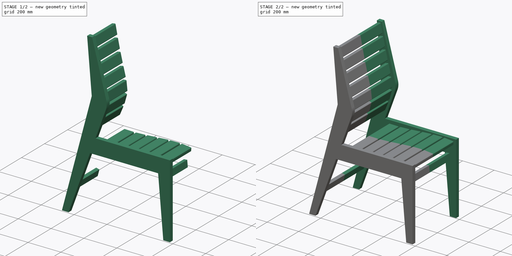
[diagram: build sequence overview — one tinted view per stage of 2, left to right]
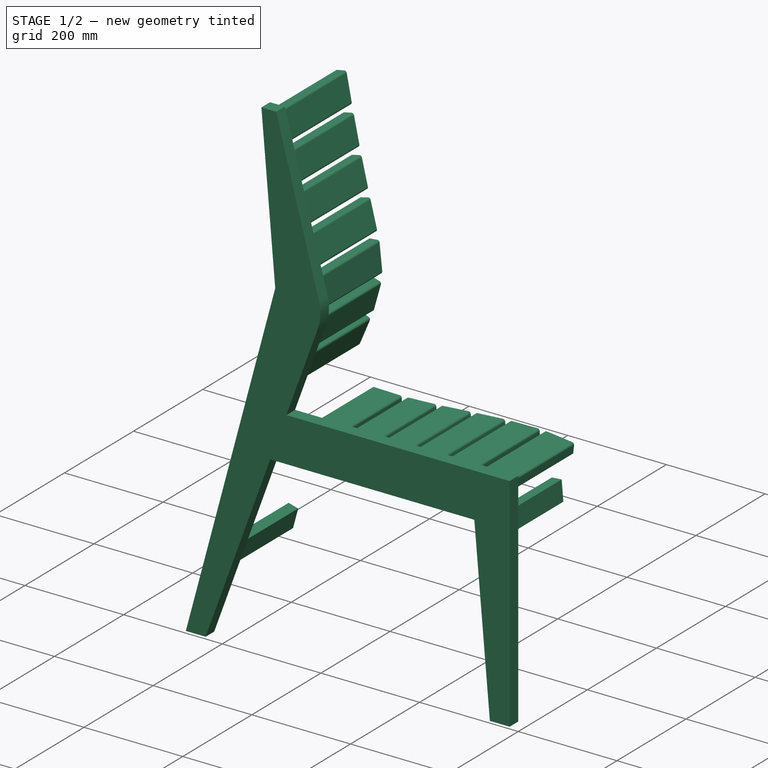
[diagram: stage 1 of 2 — iso view after this stage's code; geometry added in this stage tinted green]
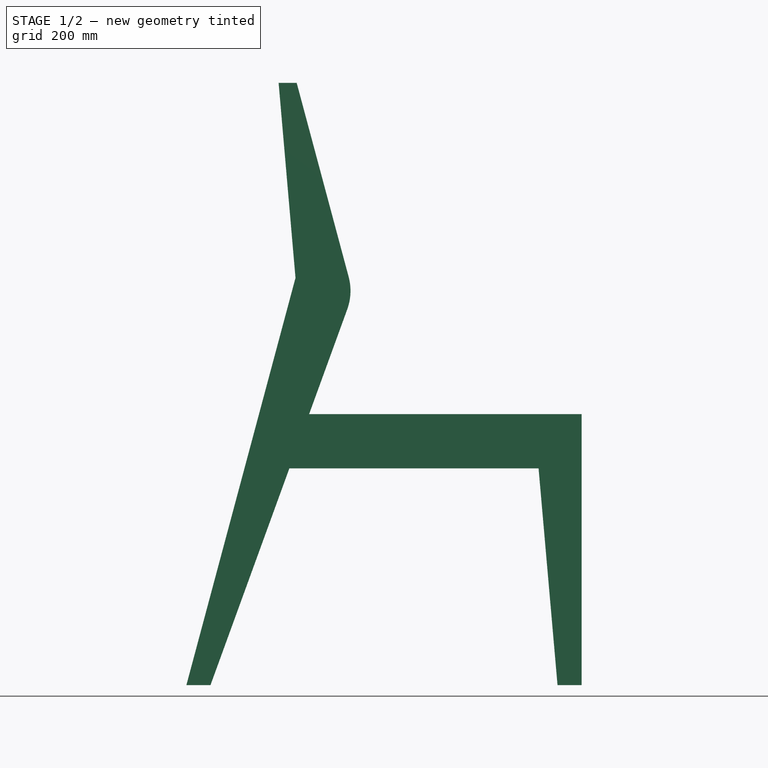
[diagram: stage 1 of 2 — front view after this stage's code; geometry added in this stage tinted green]
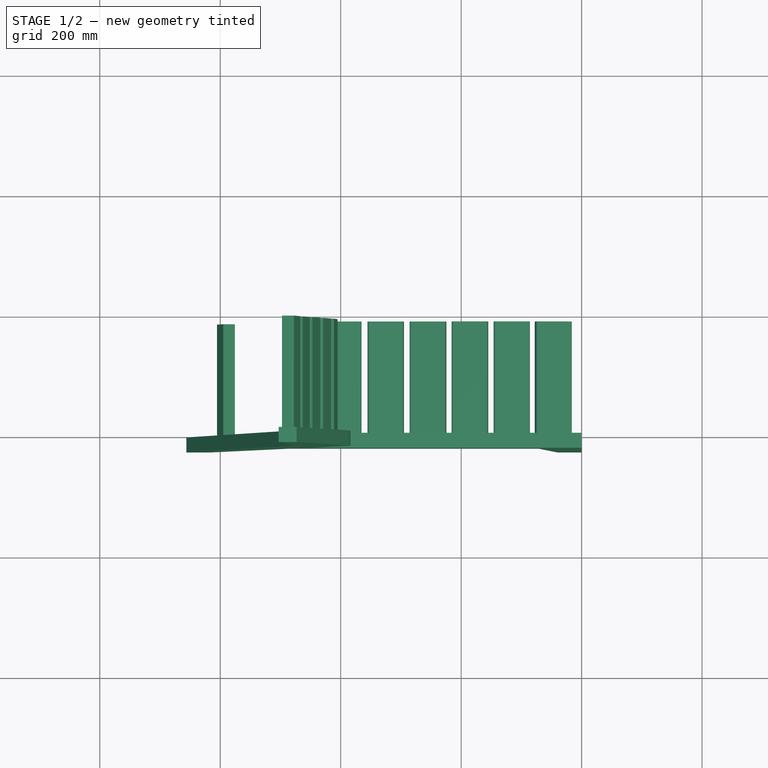
[diagram: stage 1 of 2 — top view after this stage's code; geometry added in this stage tinted green]
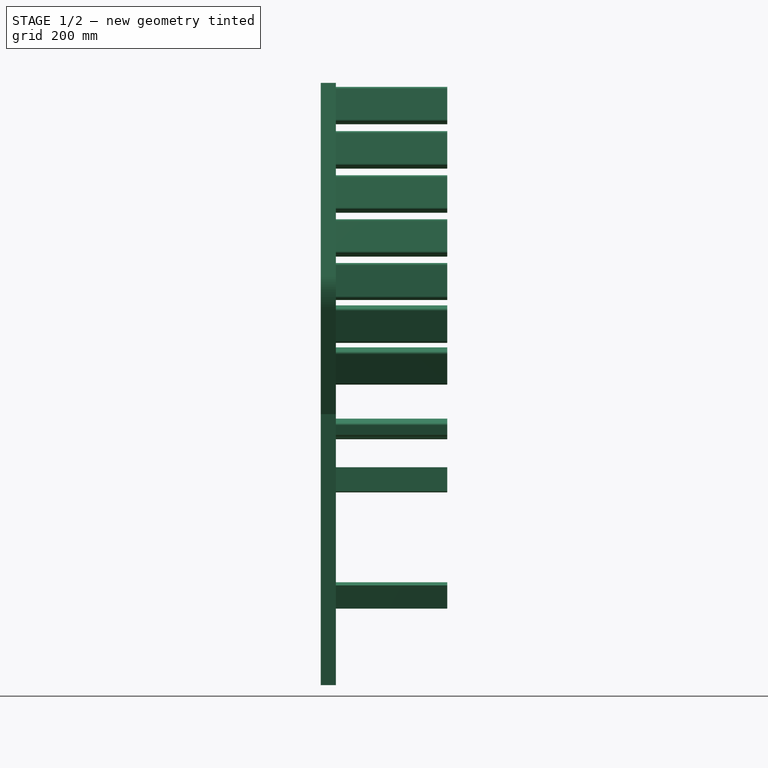
[diagram: stage 1 of 2 — right view after this stage's code; geometry added in this stage tinted green]
FCSTD DOCUMENT  (FreeCAD 0.21R33694 (Git))
Label: office_chair
License: All rights reserved
LicenseURL: http://en.wikipedia.org/wiki/All_rights_reserved
objects: TechDraw::DrawViewDimension×25, Sketcher::SketchObject×5, Spreadsheet::Sheet×3, TechDraw::DrawProjGroupItem×3, TechDraw::DrawProjGroup×3, TechDraw::DrawViewBalloon×3, PartDesign::Pad×2, TechDraw::DrawSVGTemplate×2, TechDraw::DrawViewAnnotation×2, TechDraw::DrawPage×2, PartDesign::Mirrored×1, PartDesign::Body×1
note: 51 computed .brp shape members not serialized (recipe doc carries the construction recipe); baked Part::Feature solids carry a one-line shape summary decoded from their .brp

FEATURE [Sketcher::SketchObject] Sketch
  FullyConstrained = true
  Placement = pos=(0,0,0) rot=(1,0,0;1.5708rad)
  expr: Constraints[16] = <<Spreadsheet>>.back_angle
  expr: Constraints[17] = <<Spreadsheet>>.back_leg_angle
  expr: Constraints[26] = <<Spreadsheet>>.total_height - <<Spreadsheet>>.seat_height
  expr: Constraints[5] = <<Spreadsheet>>.seat_height
  expr: Constraints[7] = <<Spreadsheet>>.seat_length
  sketch-geometry (18):
    g0: LineSegment StartX=-52.45 StartY=0 StartZ=0 EndX=400 EndY=0 EndZ=0
    g1: LineSegment StartX=328.504 StartY=-90 StartZ=0 EndX=-85.2073 EndY=-90 EndZ=0
    g2: LineSegment StartX=400 StartY=0 StartZ=0 EndX=400 EndY=-450 EndZ=0
    g3: LineSegment StartX=400 StartY=-450 StartZ=0 EndX=360 EndY=-450 EndZ=0
    g4: LineSegment StartX=360 StartY=-450 StartZ=0 EndX=328.504 EndY=-90 EndZ=0
    g5: LineSegment StartX=-216.237 StartY=-450 StartZ=0 EndX=-85.2073 EndY=-90 EndZ=0
    g6: LineSegment StartX=-52.45 StartY=0 StartZ=0 EndX=10.8322 EndY=173.866 EndZ=0
    g7: LineSegment StartX=13.1932 StartY=227.942 StartZ=0 EndX=-73.1021 EndY=550 EndZ=0
    g8: LineSegment StartX=-256.237 StartY=-450 StartZ=0 EndX=-216.237 EndY=-450 EndZ=0
    g9: LineSegment StartX=-73.1021 StartY=550 StartZ=0 EndX=-103.102 EndY=550 EndZ=0
    g10: LineSegment StartX=-103.102 StartY=550 StartZ=0 EndX=-75.0633 EndY=226.148 EndZ=0
    g11: LineSegment StartX=-256.237 StartY=-450 StartZ=0 EndX=-75.0633 EndY=226.148 EndZ=0
    g12: ArcOfCircle CenterX=-73.7402 CenterY=204.648 CenterZ=0 NormalX=0 NormalY=0 NormalZ=1 AngleXU=0 Radius=90 StartAngle=5.93412 EndAngle=6.54498
    g13: LineSegment StartX=-216.237 StartY=-450 StartZ=0 EndX=20.5376 EndY=200.532 EndZ=0
    g14: LineSegment StartX=-73.1021 StartY=550 StartZ=0 EndX=20.5376 EndY=200.532 EndZ=0
    g15: LineSegment StartX=-75.0633 StartY=226.148 StartZ=0 EndX=20.5376 EndY=200.532 EndZ=0
    g16: LineSegment StartX=-52.45 StartY=0 StartZ=0 EndX=-85.2073 EndY=-90 EndZ=0
    g17: LineSegment StartX=360 StartY=-450 StartZ=0 EndX=320.63 EndY=0 EndZ=0
  constraints (50):
    c: Horizontal(g0)
    c: Horizontal(g1)
    c: Coincident(g2,g3)
    c: Horizontal(g3)
    c: Coincident(g4,g3)
    c: DistanceY(g2,g0) = 450
    c: PointOnObject(g5,g3)
    c: DistanceX(g-1,g0) = 400
    c: Coincident(g2,g0)
    c: Coincident(g5,g1)
    c: Coincident(g1,g4)
    c: Perpendicular(g2,g0)
    c: DistanceX(g3,g2) = 40
    c: Angle(g1,g4) = 1.65806
    c: Coincident(g8,g5)
    c: Horizontal(g8)
    c: Angle(g0,g7) = 1.8326
    c: Angle(g5,g1) = 1.91986
    c: PointOnObject(g0,g-1)
    c: Coincident(g0,g6)
    c: PointOnObject(g0,g5)
    c: Coincident(g9,g7)
    c: Horizontal(g9)
    c: DistanceY(g1,g0) = 90
    c: Coincident(g10,g9)
    c: Coincident(g11,g8)
    c: DistanceY(g0,g7) = 550
    c: DistanceX(g8,g8) = 40
    c: DistanceX(g0,g0) = 452.45
    c: Tangent(g7,g12) = -1.5708
    c: Tangent(g6,g12) = -1.5708
    c: Coincident(g10,g11)
    c: Parallel(g6,g5)
    c: Angle(g8,g11) = 1.309
    c: Distance(g11) = 700
    c: Coincident(g13,g5)
    c: Coincident(g14,g7)
    c: Coincident(g14,g13)
    c: Parallel(g14,g7)
    c: Parallel(g13,g6)
    c: Coincident(g15,g10)
    c: Coincident(g15,g13)
    c: Coincident(g16,g0)
    c: Coincident(g16,g1)
    c: Coincident(g17,g3)
    c: PointOnObject(g17,g0)
    c: Parallel(g4,g17)
    c: Angle(g11,g15) = 1.5708
    c: Distance(g12,g7) = 90
    c: Distance(g9) = 30
FEATURE [Spreadsheet::Sheet] Spreadsheet
  cells = A1='seat length; B1(seat_length)=400; A2='seat height; B2(seat_height)=450; A3='back angle; B3(back_angle)=105; A4='chair width; B4(chair_width)=420; A5='slats thickness; B5(slat_thickness)=20; A6='back slats height; B6(back_slat_width)=60; A7='seat slats width; B7(seat_slat_width)=80; A8='seat slats thickness; B8(seat_slat_thickness)=20; A9='total height; B9(total_height)=1000; A10='lumbar support end height; B10(lumbar_end_height)=250; A11='back slat gap; B11(back_slat_gap)=15; A12='back slat thickness; B12(back_slat_thickness)=20; A13='seat slat gap; B13(seat_slat_gap)=10; A14='back leg angle to surface; B14(back_leg_angle)=110; A15='draft back; B15(draft_back)=5; A16='side thickness; B16(side_thickness)=25
FEATURE [Sketcher::SketchObject] Sketch001
  ExternalGeometry = -> [Sketch]
  FullyConstrained = false
  MapMode = 5
  Placement = pos=(0,0,0) rot=(0,0.707107,0.707107;3.14159rad)
  expr: Constraints[103] = Spreadsheet.seat_slat_gap
  expr: Constraints[129] = <<Spreadsheet>>.seat_slat_gap
  expr: Constraints[154] = <<Spreadsheet>>.seat_slat_gap
  expr: Constraints[179] = <<Spreadsheet>>.seat_slat_gap
  expr: Constraints[204] = <<Spreadsheet>>.seat_slat_gap
  expr: Constraints[262] = <<Spreadsheet>>.back_slat_gap
  expr: Constraints[331] = <<Spreadsheet>>.back_slat_gap
  expr: Constraints[378] = <<Spreadsheet>>.back_slat_gap
  expr: Constraints[385] = <<Spreadsheet>>.back_slat_gap
  expr: Constraints[386] = <<Spreadsheet>>.back_slat_gap
  expr: Constraints[387] = <<Spreadsheet>>.back_slat_gap
  expr: Constraints[395] = <<Spreadsheet>>.back_slat_thickness
  expr: Constraints[396] = 40
  expr: Constraints[40] = <<Spreadsheet>>.back_slat_width
  expr: Constraints[48] = <<Spreadsheet>>.back_slat_thickness
  sketch-geometry (150):
    g0-g3: Circle x4 (B-spline internal-alignment scaffolding for g4; pole/knot coordinates omitted)
    g4: BSplineCurve PolesCount=4 KnotsCount=2 Degree=3 IsPeriodic=0
    g5: GeomPoint X=-385 Y=-15 Z=0
    g6: GeomPoint X=32.45 Y=-20 Z=0
    g7: LineSegment StartX=-189.221 StartY=246.933 StartZ=0 EndX=-137.221 EndY=246.889 EndZ=0
    g8: LineSegment StartX=-133.225 StartY=242.885 StartZ=0 EndX=-133.238 EndY=226.885 EndZ=0
    g9: LineSegment StartX=-133.238 StartY=226.885 StartZ=0 EndX=-193.238 EndY=226.937 EndZ=0
    g10: LineSegment StartX=-193.238 StartY=226.937 StartZ=0 EndX=-193.225 EndY=242.937 EndZ=0
    g11-g15: Circle x5 (B-spline internal-alignment scaffolding for g16; pole/knot coordinates omitted)
    g16: BSplineCurve PolesCount=5 KnotsCount=3 Degree=3 IsPeriodic=0
    g17: GeomPoint X=72.45 Y=0 Z=0
    g18: GeomPoint X=5.10565 Y=196.674 Z=0
    g19: GeomPoint X=78.1021 Y=545 Z=0
    g20: Circle CenterX=-178.23 CenterY=236.924 CenterZ=0 NormalX=0 NormalY=0 NormalZ=1 AngleXU=0 Radius=4
    g21: Circle CenterX=-148.23 CenterY=236.898 CenterZ=0 NormalX=0 NormalY=0 NormalZ=1 AngleXU=0 Radius=4
    g22: Circle CenterX=-163.23 CenterY=236.911 CenterZ=0 NormalX=0 NormalY=0 NormalZ=1 AngleXU=0 Radius=4
    g23: ArcOfCircle CenterX=-189.225 CenterY=242.933 CenterZ=0 NormalX=0 NormalY=0 NormalZ=1 AngleXU=0 Radius=4 StartAngle=1.56994 EndAngle=3.14073
    g24: ArcOfCircle CenterX=-137.225 CenterY=242.889 CenterZ=0 NormalX=0 NormalY=0 NormalZ=1 AngleXU=0 Radius=4 StartAngle=6.28233 EndAngle=7.85312
    g25: LineSegment StartX=-380.084 StartY=-14.0871 StartZ=0 EndX=-328.406 EndY=-8.30519 EndZ=0
    g26: LineSegment StartX=-323.987 StartY=-11.8356 StartZ=0 EndX=-322.207 EndY=-27.7364 EndZ=0
    g27: LineSegment StartX=-322.207 StartY=-27.7364 StartZ=0 EndX=-381.835 EndY=-34.4078 EndZ=0
    g28: LineSegment StartX=-381.835 StartY=-34.4078 StartZ=0 EndX=-383.614 EndY=-18.507 EndZ=0
    g29: Circle CenterX=-368.04 CenterY=-22.802 CenterZ=0 NormalX=0 NormalY=0 NormalZ=1 AngleXU=0 Radius=4
    g30: Circle CenterX=-338.226 CenterY=-19.4663 CenterZ=0 NormalX=0 NormalY=0 NormalZ=1 AngleXU=0 Radius=4
    g31: Circle CenterX=-353.133 CenterY=-21.1341 CenterZ=0 NormalX=0 NormalY=0 NormalZ=1 AngleXU=0 Radius=4
    g32: ArcOfCircle CenterX=-379.639 CenterY=-18.0623 CenterZ=0 NormalX=0 NormalY=0 NormalZ=1 AngleXU=0 Radius=4 StartAngle=1.68222 EndAngle=3.25301
    g33: ArcOfCircle CenterX=-327.962 CenterY=-12.2804 CenterZ=0 NormalX=0 NormalY=0 NormalZ=1 AngleXU=0 Radius=4 StartAngle=0.111421 EndAngle=1.68222
    g34: LineSegment StartX=-309.95 StartY=-7.58404 StartZ=0 EndX=-257.953 EndY=-8.12058 EndZ=0
    g35: LineSegment StartX=-253.994 StartY=-12.1616 StartZ=0 EndX=-254.159 EndY=-28.1608 EndZ=0
    g36: LineSegment StartX=-254.159 StartY=-28.1608 StartZ=0 EndX=-314.156 EndY=-27.5417 EndZ=0
    g37: LineSegment StartX=-314.156 StartY=-27.5417 StartZ=0 EndX=-313.991 EndY=-11.5426 EndZ=0
    g38: Circle CenterX=-299.054 CenterY=-17.697 CenterZ=0 NormalX=0 NormalY=0 NormalZ=1 AngleXU=0 Radius=4
    g39: Circle CenterX=-269.055 CenterY=-18.0066 CenterZ=0 NormalX=0 NormalY=0 NormalZ=1 AngleXU=0 Radius=4
    g40: Circle CenterX=-284.054 CenterY=-17.8518 CenterZ=0 NormalX=0 NormalY=0 NormalZ=1 AngleXU=0 Radius=4
    g41: ArcOfCircle CenterX=-309.991 CenterY=-11.5838 CenterZ=0 NormalX=0 NormalY=0 NormalZ=1 AngleXU=0 Radius=4 StartAngle=1.56048 EndAngle=3.13127
    g42: ArcOfCircle CenterX=-257.994 CenterY=-12.1204 CenterZ=0 NormalX=0 NormalY=0 NormalZ=1 AngleXU=0 Radius=4 StartAngle=6.27287 EndAngle=7.84366
    g43: LineSegment StartX=-239.752 StartY=-8.95899 StartZ=0 EndX=-187.866 EndY=-12.4041 EndZ=0
    g44: LineSegment StartX=-184.14 StartY=-16.6604 StartZ=0 EndX=-185.2 EndY=-32.6252 EndZ=0
    g45: LineSegment StartX=-185.2 StartY=-32.6252 StartZ=0 EndX=-245.068 EndY=-28.65 EndZ=0
    g46: LineSegment StartX=-245.068 StartY=-28.65 StartZ=0 EndX=-244.008 EndY=-12.6852 EndZ=0
    g47: Circle CenterX=-229.438 CenterY=-19.6658 CenterZ=0 NormalX=0 NormalY=0 NormalZ=1 AngleXU=0 Radius=4
    g48: Circle CenterX=-199.504 CenterY=-21.6534 CenterZ=0 NormalX=0 NormalY=0 NormalZ=1 AngleXU=0 Radius=4
    g49: Circle CenterX=-214.471 CenterY=-20.6596 CenterZ=0 NormalX=0 NormalY=0 NormalZ=1 AngleXU=0 Radius=4
    g50: ArcOfCircle CenterX=-240.017 CenterY=-12.9502 CenterZ=0 NormalX=0 NormalY=0 NormalZ=1 AngleXU=0 Radius=4 StartAngle=1.50449 EndAngle=3.07529
    g51: ArcOfCircle CenterX=-188.131 CenterY=-16.3954 CenterZ=0 NormalX=0 NormalY=0 NormalZ=1 AngleXU=0 Radius=4 StartAngle=6.21688 EndAngle=7.78768
    g52: LineSegment StartX=-169.881 StartY=-13.7919 StartZ=0 EndX=-118.031 EndY=-17.7361 EndZ=0
    g53: LineSegment StartX=-114.346 StartY=-22.028 StartZ=0 EndX=-115.559 EndY=-37.9819 EndZ=0
    g54: LineSegment StartX=-115.559 StartY=-37.9819 StartZ=0 EndX=-175.387 EndY=-33.4309 EndZ=0
    g55: LineSegment StartX=-175.387 StartY=-33.4309 StartZ=0 EndX=-174.173 EndY=-17.477 EndZ=0
    g56: Circle CenterX=-159.671 CenterY=-24.5975 CenterZ=0 NormalX=0 NormalY=0 NormalZ=1 AngleXU=0 Radius=4
    g57: Circle CenterX=-129.758 CenterY=-26.873 CenterZ=0 NormalX=0 NormalY=0 NormalZ=1 AngleXU=0 Radius=4
    g58: Circle CenterX=-144.714 CenterY=-25.7352 CenterZ=0 NormalX=0 NormalY=0 NormalZ=1 AngleXU=0 Radius=4
    g59: ArcOfCircle CenterX=-170.184 CenterY=-17.7804 CenterZ=0 NormalX=0 NormalY=0 NormalZ=1 AngleXU=0 Radius=4 StartAngle=1.49487 EndAngle=3.06567
    g60: ArcOfCircle CenterX=-118.334 CenterY=-21.7246 CenterZ=0 NormalX=0 NormalY=0 NormalZ=1 AngleXU=0 Radius=4 StartAngle=6.20726 EndAngle=7.77806
    g61: LineSegment StartX=-100.187 StartY=-18.9316 StartZ=0 EndX=-48.245 EndY=-21.3777 EndZ=0
    g62: LineSegment StartX=-44.4375 StartY=-25.5614 StartZ=0 EndX=-45.1902 EndY=-41.5437 EndZ=0
    g63: LineSegment StartX=-45.1902 StartY=-41.5437 StartZ=0 EndX=-105.124 EndY=-38.7213 EndZ=0
    g64: LineSegment StartX=-105.124 StartY=-38.7213 StartZ=0 EndX=-104.371 EndY=-22.7391 EndZ=0
    g65: Circle CenterX=-89.67 CenterY=-29.438 CenterZ=0 NormalX=0 NormalY=0 NormalZ=1 AngleXU=0 Radius=4
    g66: Circle CenterX=-59.7032 CenterY=-30.8492 CenterZ=0 NormalX=0 NormalY=0 NormalZ=1 AngleXU=0 Radius=4
    g67: Circle CenterX=-74.6866 CenterY=-30.1436 CenterZ=0 NormalX=0 NormalY=0 NormalZ=1 AngleXU=0 Radius=4
    g68: ArcOfCircle CenterX=-100.376 CenterY=-22.9272 CenterZ=0 NormalX=0 NormalY=0 NormalZ=1 AngleXU=0 Radius=4 StartAngle=1.52374 EndAngle=3.09454
    g69: ArcOfCircle CenterX=-48.4331 CenterY=-25.3732 CenterZ=0 NormalX=0 NormalY=0 NormalZ=1 AngleXU=0 Radius=4 StartAngle=6.23613 EndAngle=7.80693
    g70: LineSegment StartX=-30.5206 StartY=-21.7209 StartZ=0 EndX=21.4692 EndY=-20.6884 EndZ=0
    g71: LineSegment StartX=25.5478 StartY=-24.6082 StartZ=0 EndX=25.8655 EndY=-40.6051 EndZ=0
    g72: LineSegment StartX=25.8655 StartY=-40.6051 StartZ=0 EndX=-34.1227 EndY=-41.7964 EndZ=0
    g73: LineSegment StartX=-34.1227 StartY=-41.7964 StartZ=0 EndX=-34.4404 EndY=-25.7995 EndZ=0
    g74: Circle CenterX=-19.3242 CenterY=-31.5005 CenterZ=0 NormalX=0 NormalY=0 NormalZ=1 AngleXU=0 Radius=4
    g75: Circle CenterX=10.6699 CenterY=-30.9049 CenterZ=0 NormalX=0 NormalY=0 NormalZ=1 AngleXU=0 Radius=4
    g76: Circle CenterX=-4.32716 CenterY=-31.2027 CenterZ=0 NormalX=0 NormalY=0 NormalZ=1 AngleXU=0 Radius=4
    g77: ArcOfCircle CenterX=-30.4412 CenterY=-25.7201 CenterZ=0 NormalX=0 NormalY=0 NormalZ=1 AngleXU=0 Radius=4 StartAngle=1.59065 EndAngle=3.16145
    g78: ArcOfCircle CenterX=21.5486 CenterY=-24.6876 CenterZ=0 NormalX=0 NormalY=0 NormalZ=1 AngleXU=0 Radius=4 StartAngle=0.0198564 EndAngle=1.59065
    g79: LineSegment StartX=67.1389 StartY=489.064 StartZ=0 EndX=77.1683 EndY=540.088 EndZ=0
    g80: LineSegment StartX=81.8647 StartY=543.241 StartZ=0 EndX=97.5643 EndY=540.155 EndZ=0
    g81: LineSegment StartX=97.5643 StartY=540.155 StartZ=0 EndX=85.9918 EndY=481.282 EndZ=0
    g82: LineSegment StartX=85.9918 StartY=481.282 StartZ=0 EndX=70.2923 EndY=484.368 EndZ=0
    g83: Circle CenterX=79.0727 CenterY=497.929 CenterZ=0 NormalX=0 NormalY=0 NormalZ=1 AngleXU=0 Radius=4
    g84: Circle CenterX=84.8589 CenterY=527.366 CenterZ=0 NormalX=0 NormalY=0 NormalZ=1 AngleXU=0 Radius=4
    g85: Circle CenterX=81.9658 CenterY=512.647 CenterZ=0 NormalX=0 NormalY=0 NormalZ=1 AngleXU=0 Radius=4
    g86: ArcOfCircle CenterX=71.0638 CenterY=488.293 CenterZ=0 NormalX=0 NormalY=0 NormalZ=1 AngleXU=0 Radius=4 StartAngle=2.9475 EndAngle=4.5183
    g87: ArcOfCircle CenterX=81.0932 CenterY=539.316 CenterZ=0 NormalX=0 NormalY=0 NormalZ=1 AngleXU=0 Radius=4 StartAngle=1.37671 EndAngle=2.9475
    g88: LineSegment StartX=51.5336 StartY=415.784 StartZ=0 EndX=62.5187 EndY=466.61 EndZ=0
    g89: LineSegment StartX=67.2735 StartY=469.675 StartZ=0 EndX=82.9124 EndY=466.295 EndZ=0
    g90: LineSegment StartX=82.9124 StartY=466.295 StartZ=0 EndX=70.2373 EndY=407.649 EndZ=0
    g91: LineSegment StartX=70.2373 StartY=407.649 StartZ=0 EndX=54.5984 EndY=411.029 EndZ=0
    g92: Circle CenterX=63.6317 CenterY=424.423 CenterZ=0 NormalX=0 NormalY=0 NormalZ=1 AngleXU=0 Radius=4
    g93: Circle CenterX=69.9693 CenterY=453.746 CenterZ=0 NormalX=0 NormalY=0 NormalZ=1 AngleXU=0 Radius=4
    g94: Circle CenterX=66.8005 CenterY=439.084 CenterZ=0 NormalX=0 NormalY=0 NormalZ=1 AngleXU=0 Radius=4
    g95: ArcOfCircle CenterX=55.4434 CenterY=414.939 CenterZ=0 NormalX=0 NormalY=0 NormalZ=1 AngleXU=0 Radius=4 StartAngle=2.92874 EndAngle=4.49953
    g96: ArcOfCircle CenterX=66.4285 CenterY=465.765 CenterZ=0 NormalX=0 NormalY=0 NormalZ=1 AngleXU=0 Radius=4 StartAngle=1.35794 EndAngle=2.92874
    g97: LineSegment StartX=34.3464 StartY=342.872 StartZ=0 EndX=46.453 EndY=393.443 EndZ=0
    g98: LineSegment StartX=51.2744 StartY=396.402 StartZ=0 EndX=66.8347 EndY=392.677 EndZ=0
    g99: LineSegment StartX=66.8347 StartY=392.677 StartZ=0 EndX=52.8655 EndY=334.326 EndZ=0
    g100: LineSegment StartX=52.8655 StartY=334.326 StartZ=0 EndX=37.3052 EndY=338.051 EndZ=0
    g101: Circle CenterX=46.6326 CenterY=351.242 CenterZ=0 NormalX=0 NormalY=0 NormalZ=1 AngleXU=0 Radius=4
    g102: Circle CenterX=53.6172 CenterY=380.417 CenterZ=0 NormalX=0 NormalY=0 NormalZ=1 AngleXU=0 Radius=4
    g103: Circle CenterX=50.1249 CenterY=365.829 CenterZ=0 NormalX=0 NormalY=0 NormalZ=1 AngleXU=0 Radius=4
    g104: ArcOfCircle CenterX=38.2365 CenterY=341.941 CenterZ=0 NormalX=0 NormalY=0 NormalZ=1 AngleXU=0 Radius=4 StartAngle=2.90662 EndAngle=4.47741
    g105: ArcOfCircle CenterX=50.3431 CenterY=392.512 CenterZ=0 NormalX=0 NormalY=0 NormalZ=1 AngleXU=0 Radius=4 StartAngle=1.33582 EndAngle=2.90662
    g106: LineSegment StartX=15.9879 StartY=270.209 StartZ=0 EndX=28.7688 EndY=320.614 EndZ=0
    g107: LineSegment StartX=33.6293 StartY=323.508 StartZ=0 EndX=49.1385 EndY=319.576 EndZ=0
    g108: LineSegment StartX=49.1385 StartY=319.576 StartZ=0 EndX=34.3913 EndY=261.416 EndZ=0
    g109: LineSegment StartX=34.3913 StartY=261.416 StartZ=0 EndX=18.8821 EndY=265.349 EndZ=0
    g110: Circle CenterX=28.3848 CenterY=278.414 CenterZ=0 NormalX=0 NormalY=0 NormalZ=1 AngleXU=0 Radius=4
    g111: Circle CenterX=35.7584 CenterY=307.494 CenterZ=0 NormalX=0 NormalY=0 NormalZ=1 AngleXU=0 Radius=4
    g112: Circle CenterX=32.0716 CenterY=292.954 CenterZ=0 NormalX=0 NormalY=0 NormalZ=1 AngleXU=0 Radius=4
    g113: ArcOfCircle CenterX=19.8652 CenterY=269.226 CenterZ=0 NormalX=0 NormalY=0 NormalZ=1 AngleXU=0 Radius=4 StartAngle=2.89326 EndAngle=4.46406
    g114: ArcOfCircle CenterX=32.6461 CenterY=319.631 CenterZ=0 NormalX=0 NormalY=0 NormalZ=1 AngleXU=0 Radius=4 StartAngle=1.32247 EndAngle=2.89326
    g115: LineSegment StartX=5.14592 StartY=195.582 StartZ=0 EndX=10.6719 EndY=247.288 EndZ=0
    g116: LineSegment StartX=15.0743 StartY=250.84 StartZ=0 EndX=30.9837 EndY=249.14 EndZ=0
    g117: LineSegment StartX=30.9837 StartY=249.14 StartZ=0 EndX=24.6076 EndY=189.479 EndZ=0
    g118: LineSegment StartX=24.6076 StartY=189.479 StartZ=0 EndX=8.6982 EndY=191.18 EndZ=0
    g119: Circle CenterX=16.2582 CenterY=205.457 CenterZ=0 NormalX=0 NormalY=0 NormalZ=1 AngleXU=0 Radius=4
    g120: Circle CenterX=19.4463 CenterY=235.287 CenterZ=0 NormalX=0 NormalY=0 NormalZ=1 AngleXU=0 Radius=4
    g121: Circle CenterX=17.8523 CenterY=220.372 CenterZ=0 NormalX=0 NormalY=0 NormalZ=1 AngleXU=0 Radius=4
    g122: ArcOfCircle CenterX=9.12327 CenterY=195.157 CenterZ=0 NormalX=0 NormalY=0 NormalZ=1 AngleXU=0 Radius=4 StartAngle=3.03512 EndAngle=4.60592
    g123: ArcOfCircle CenterX=14.6492 CenterY=246.863 CenterZ=0 NormalX=0 NormalY=0 NormalZ=1 AngleXU=0 Radius=4 StartAngle=1.46433 EndAngle=3.03512
    g124: LineSegment StartX=21.8855 StartY=121.3 StartZ=0 EndX=7.87801 EndY=171.378 EndZ=0
    g125: LineSegment StartX=10.6527 StartY=176.308 StartZ=0 EndX=26.0612 EndY=180.618 EndZ=0
    g126: LineSegment StartX=26.0612 StartY=180.618 StartZ=0 EndX=42.2237 EndY=122.835 EndZ=0
    g127: LineSegment StartX=42.2237 StartY=122.835 StartZ=0 EndX=26.8151 EndY=118.525 EndZ=0
    g128: Circle CenterX=28.5527 CenterY=134.587 CenterZ=0 NormalX=0 NormalY=0 NormalZ=1 AngleXU=0 Radius=4
    g129: Circle CenterX=20.4715 CenterY=163.478 CenterZ=0 NormalX=0 NormalY=0 NormalZ=1 AngleXU=0 Radius=4
    g130: Circle CenterX=24.5121 CenterY=149.033 CenterZ=0 NormalX=0 NormalY=0 NormalZ=1 AngleXU=0 Radius=4
    g131: ArcOfCircle CenterX=25.7376 CenterY=122.378 CenterZ=0 NormalX=0 NormalY=0 NormalZ=1 AngleXU=0 Radius=4 StartAngle=3.41434 EndAngle=4.98513
    g132: ArcOfCircle CenterX=11.7302 CenterY=172.455 CenterZ=0 NormalX=0 NormalY=0 NormalZ=1 AngleXU=0 Radius=4 StartAngle=1.84354 EndAngle=3.41434
    g133: LineSegment StartX=50.4428 StartY=51.4374 StartZ=0 EndX=30.2338 EndY=99.3498 EndZ=0
    g134: LineSegment StartX=32.3648 StartY=104.59 StartZ=0 EndX=47.1071 EndY=110.808 EndZ=0
    g135: LineSegment StartX=47.1071 StartY=110.808 StartZ=0 EndX=70.4252 EndY=55.5246 EndZ=0
    g136: LineSegment StartX=70.4252 StartY=55.5246 StartZ=0 EndX=55.683 EndY=49.3064 EndZ=0
    g137: Circle CenterX=55.3818 CenterY=65.4591 CenterZ=0 NormalX=0 NormalY=0 NormalZ=1 AngleXU=0 Radius=4
    g138: Circle CenterX=43.7227 CenterY=93.1008 CenterZ=0 NormalX=0 NormalY=0 NormalZ=1 AngleXU=0 Radius=4
    g139: Circle CenterX=49.5522 CenterY=79.28 CenterZ=0 NormalX=0 NormalY=0 NormalZ=1 AngleXU=0 Radius=4
    g140: ArcOfCircle CenterX=54.1284 CenterY=52.992 CenterZ=0 NormalX=0 NormalY=0 NormalZ=1 AngleXU=0 Radius=4 StartAngle=3.54074 EndAngle=5.11154
    g141: ArcOfCircle CenterX=33.9193 CenterY=100.904 CenterZ=0 NormalX=0 NormalY=0 NormalZ=1 AngleXU=0 Radius=4 StartAngle=1.96995 EndAngle=3.54074
    g142: LineSegment StartX=175.612 StartY=-284.335 StartZ=0 EndX=194.931 EndY=-279.159 EndZ=0
    g143: LineSegment StartX=194.931 StartY=-279.159 StartZ=0 EndX=205.283 EndY=-317.796 EndZ=0
    g144: LineSegment StartX=205.283 StartY=-317.796 StartZ=0 EndX=185.965 EndY=-322.972 EndZ=0
    g145: LineSegment StartX=185.965 StartY=-322.972 StartZ=0 EndX=175.612 EndY=-284.335 EndZ=0
    g146: LineSegment StartX=-358.466 StartY=-88.2569 StartZ=0 EndX=-338.542 EndY=-90 EndZ=0
    g147: LineSegment StartX=-361.952 StartY=-128.105 StartZ=0 EndX=-358.466 EndY=-88.2569 EndZ=0
    g148: LineSegment StartX=-342.029 StartY=-129.848 StartZ=0 EndX=-361.952 EndY=-128.105 EndZ=0
    g149: LineSegment StartX=-338.542 StartY=-90 StartZ=0 EndX=-342.029 EndY=-129.848 EndZ=0
  constraints (402):
    c: Weight(g0) = 1
    c: Equal(g0,g1)
    c: Equal(g0,g2)
    c: Equal(g0,g3)
    c: InternalAlignment(g0-g3 -> g4) x4
    c: InternalAlignment(g5,g4)
    c: InternalAlignment(g6,g4)
    c: DistanceY(g4,g-4) = 15
    c: DistanceX(g-4,g4) = 15
    c: DistanceY(g4,g-1) = 20
    c: Coincident(g8,g9)
    c: Coincident(g9,g10)
    c: Weight(g11) = 1
    c: Equal(g11, g12-g15) x4
    c: InternalAlignment(g11-g15 -> g16) x5
    c: InternalAlignment(g17,g16)
    c: InternalAlignment(g18,g16)
    c: InternalAlignment(g19,g16)
    c: PointOnObject(g11,g-1)
    c: DistanceX(g3,g-6) = 20
    c: DistanceX(g-6,g11) = 20
    c: Diameter(g20) = 8
    c: Distance(g20,g10) = 15
    c: Distance(g20,g7) = 10
    c: Equal(g20,g21) = 8
    c: Distance(g21,g7) = 10
    c: Equal(g20,g22) = 8
    c: Distance(g22,g7) = 10
    c: Distance(g22,g20) = 15
    c: Distance(g21,g8) = 15
    c: Distance(g9) = 60
    c: Parallel(g7,g9)
    c: Parallel(g10,g8)
    c: Tangent(g10,g23) = 1.5708
    c: Tangent(g7,g23) = 1.5708
    c: Tangent(g7,g24) = 1.5708
    c: Tangent(g8,g24) = 1.5708
    c: Perpendicular(g7,g8)
    c: Distance(g7,g9) = 20
    c: Radius(g23) = 4
    c: Radius(g24) = 4
    c: Coincident(g26,g27)
    c: Coincident(g27,g28)
    c: Equal(g20,g29) = 8
    c: Distance(g29,g28) = 15
    c: Distance(g29,g25) = 10
    c: Equal(g29,g30) = 8
    c: Distance(g30,g25) = 10
    c: Equal(g29,g31) = 8
    c: Distance(g31,g25) = 10
    c: Distance(g31,g29) = 15
    c: Distance(g30,g26) = 15
    c: Equal(g9,g27) = 60
    c: Parallel(g25,g27)
    c: Parallel(g28,g26)
    c: Tangent(g28,g32) = 1.5708
    c: Tangent(g25,g32) = 1.5708
    c: Tangent(g25,g33) = 1.5708
    c: Tangent(g26,g33) = 1.5708
    c: Perpendicular(g25,g26)
    c: Distance(g25,g27) = 20
    c: Equal(g23,g32) = 4
    c: Equal(g24,g33) = 4
    c: PointOnObject(g25,g4)
    c: DistanceX(g0,g1) = 120.432
    c: DistanceY(g0,g1) = 23.2776
    c: DistanceX(g2) = -111.477
    c: DistanceY(g2) = -30.2523
    c: PointOnObject(g25,g4)
    c: Coincident(g35,g36)
    c: Coincident(g36,g37)
    c: Equal(g20,g38) = 8
    c: Distance(g38,g37) = 15
    c: Distance(g38,g34) = 10
    c: Equal(g38,g39) = 8
    c: Distance(g39,g34) = 10
    c: Equal(g38,g40) = 8
    c: Distance(g40,g34) = 10
    c: Distance(g40,g38) = 15
    c: Distance(g39,g35) = 15
    c: Equal(g9,g36) = 60
    c: Parallel(g34,g36)
    c: Parallel(g37,g35)
    c: Tangent(g37,g41) = 1.5708
    c: Tangent(g34,g41) = 1.5708
    c: Tangent(g34,g42) = 1.5708
    c: Tangent(g35,g42) = 1.5708
    c: Perpendicular(g34,g35)
    c: Distance(g34,g36) = 20
    c: Equal(g23,g41) = 4
    c: Equal(g24,g42) = 4
    c: PointOnObject(g34,g4)
    c: PointOnObject(g34,g4)
    c: Distance(g26,g37) = 10
    c: Distance(g25,g0) = 5
    c: Coincident(g44,g45)
    c: Coincident(g45,g46)
    c: Equal(g20,g47) = 8
    c: Distance(g47,g46) = 15
    c: Distance(g47,g43) = 10
    c: Equal(g47,g48) = 8
    c: Distance(g48,g43) = 10
    c: Equal(g47,g49) = 8
    c: Distance(g49,g43) = 10
    c: Distance(g49,g47) = 15
    c: Distance(g48,g44) = 15
    c: Equal(g9,g45) = 60
    c: Parallel(g43,g45)
    c: Parallel(g46,g44)
    c: Tangent(g46,g50) = 1.5708
    c: Tangent(g43,g50) = 1.5708
    c: Tangent(g43,g51) = 1.5708
    c: Tangent(g44,g51) = 1.5708
    c: Perpendicular(g43,g44)
    c: Distance(g43,g45) = 20
    c: Equal(g23,g50) = 4
    c: Equal(g24,g51) = 4
    c: PointOnObject(g43,g4)
    c: PointOnObject(g43,g4)
    c: Distance(g35,g46) = 10
    c: Coincident(g53,g54)
    c: Coincident(g54,g55)
    c: Equal(g20,g56) = 8
    c: Distance(g56,g55) = 15
    c: Distance(g56,g52) = 10
    c: Equal(g56,g57) = 8
    c: Distance(g57,g52) = 10
    c: Equal(g56,g58) = 8
    c: Distance(g58,g52) = 10
    c: Distance(g58,g56) = 15
    c: Distance(g57,g53) = 15
    c: Equal(g9,g54) = 60
    c: Parallel(g52,g54)
    c: Parallel(g55,g53)
    c: Tangent(g55,g59) = 1.5708
    c: Tangent(g52,g59) = 1.5708
    c: Tangent(g52,g60) = 1.5708
    c: Tangent(g53,g60) = 1.5708
    c: Perpendicular(g52,g53)
    c: Distance(g52,g54) = 20
    c: Equal(g23,g59) = 4
    c: Equal(g24,g60) = 4
    c: PointOnObject(g52,g4)
    c: PointOnObject(g52,g4)
    c: Distance(g55,g44) = 10
    c: Coincident(g62,g63)
    c: Coincident(g63,g64)
    c: Equal(g20,g65) = 8
    c: Distance(g65,g64) = 15
    c: Distance(g65,g61) = 10
    c: Equal(g65,g66) = 8
    c: Distance(g66,g61) = 10
    c: Equal(g65,g67) = 8
    c: Distance(g67,g61) = 10
    c: Distance(g67,g65) = 15
    c: Distance(g66,g62) = 15
    c: Equal(g9,g63) = 60
    c: Parallel(g61,g63)
    c: Parallel(g64,g62)
    c: Tangent(g64,g68) = 1.5708
    c: Tangent(g61,g68) = 1.5708
    c: Tangent(g61,g69) = 1.5708
    c: Tangent(g62,g69) = 1.5708
    c: Perpendicular(g61,g62)
    c: Distance(g61,g63) = 20
    c: Equal(g23,g68) = 4
    c: Equal(g24,g69) = 4
    c: PointOnObject(g61,g4)
    c: PointOnObject(g61,g4)
    c: Distance(g53,g64) = 10
    c: Coincident(g71,g72)
    c: Coincident(g72,g73)
    c: Equal(g20,g74) = 8
    c: Distance(g74,g73) = 15
    c: Distance(g74,g70) = 10
    c: Equal(g74,g75) = 8
    c: Distance(g75,g70) = 10
    c: Equal(g74,g76) = 8
    c: Distance(g76,g70) = 10
    c: Distance(g76,g74) = 15
    c: Distance(g75,g71) = 15
    c: Equal(g9,g72) = 60
    c: Parallel(g70,g72)
    c: Parallel(g73,g71)
    c: Tangent(g73,g77) = 1.5708
    c: Tangent(g70,g77) = 1.5708
    c: Tangent(g70,g78) = 1.5708
    c: Tangent(g71,g78) = 1.5708
    c: Perpendicular(g70,g71)
    c: Distance(g70,g72) = 20
    c: Equal(g23,g77) = 4
    c: Equal(g24,g78) = 4
    c: PointOnObject(g70,g4)
    c: PointOnObject(g70,g4)
    c: Distance(g62,g73) = 10
    c: Coincident(g80,g81)
    c: Coincident(g81,g82)
    c: Equal(g20,g83) = 8
    c: Distance(g83,g82) = 15
    c: Distance(g83,g79) = 10
    c: Equal(g83,g84) = 8
    c: Distance(g84,g79) = 10
    c: Equal(g83,g85) = 8
    c: Distance(g85,g79) = 10
    c: Distance(g85,g83) = 15
    c: Distance(g84,g80) = 15
    c: Equal(g9,g81) = 60
    c: Parallel(g79,g81)
    c: Parallel(g82,g80)
    c: Tangent(g82,g86) = 1.5708
    c: Tangent(g79,g86) = 1.5708
    c: Tangent(g79,g87) = 1.5708
    c: Tangent(g80,g87) = 1.5708
    c: Perpendicular(g79,g80)
    c: Distance(g79,g81) = 20
    c: Equal(g23,g86) = 4
    c: Equal(g24,g87) = 4
    c: DistanceX(g-5,g15) = 5
    c: DistanceY(g15,g-5) = 5
    c: DistanceX(g14) = 31.9644
    c: DistanceY(g14) = 301.608
    c: DistanceX(g13) = -25.4476
    c: DistanceY(g13) = 202.688
    c: DistanceX(g12) = 39.3534
    c: DistanceY(g12) = 79.7129
    c: PointOnObject(g79,g16)
    c: PointOnObject(g79,g16)
    c: Distance(g79,g15) = 5
    c: Coincident(g89,g90)
    c: Coincident(g90,g91)
    c: Equal(g20,g92) = 8
    c: Distance(g92,g91) = 15
    c: Distance(g92,g88) = 10
    c: Equal(g92,g93) = 8
    c: Distance(g93,g88) = 10
    c: Equal(g92,g94) = 8
    c: Distance(g94,g88) = 10
    c: Distance(g94,g92) = 15
    c: Distance(g93,g89) = 15
    c: Equal(g9,g90) = 60
    c: Parallel(g88,g90)
    c: Parallel(g91,g89)
    c: Tangent(g91,g95) = 1.5708
    c: Tangent(g88,g95) = 1.5708
    c: Tangent(g88,g96) = 1.5708
    c: Tangent(g89,g96) = 1.5708
    c: Perpendicular(g88,g89)
    c: Distance(g88,g90) = 20
    c: Equal(g23,g95) = 4
    c: Equal(g24,g96) = 4
    c: PointOnObject(g88,g16)
    c: PointOnObject(g88,g16)
    c: Distance(g89,g82) = 15
    c: Coincident(g98,g99)
    c: Coincident(g99,g100)
    c: Equal(g20,g101) = 8
    c: Distance(g101,g100) = 15
    c: Distance(g101,g97) = 10
    c: Equal(g101,g102) = 8
    c: Distance(g102,g97) = 10
    c: Equal(g101,g103) = 8
    c: Distance(g103,g97) = 10
    c: Distance(g103,g101) = 15
    c: Distance(g102,g98) = 15
    c: Equal(g9,g99) = 60
    c: Parallel(g97,g99)
    c: Parallel(g100,g98)
    c: Tangent(g100,g104) = 1.5708
    c: Tangent(g97,g104) = 1.5708
    c: Tangent(g97,g105) = 1.5708
    c: Tangent(g98,g105) = 1.5708
    c: Perpendicular(g97,g98)
    c: Distance(g97,g99) = 20
    c: Equal(g23,g104) = 4
    c: Equal(g24,g105) = 4
    c: PointOnObject(g97,g16)
    c: PointOnObject(g97,g16)
    c: Coincident(g107,g108)
    c: Coincident(g108,g109)
    c: Equal(g20,g110) = 8
    c: Distance(g110,g109) = 15
    c: Distance(g110,g106) = 10
    c: Equal(g110,g111) = 8
    c: Distance(g111,g106) = 10
    c: Equal(g110,g112) = 8
    c: Distance(g112,g106) = 10
    c: Distance(g112,g110) = 15
    c: Distance(g111,g107) = 15
    c: Equal(g9,g108) = 60
    c: Parallel(g106,g108)
    c: Parallel(g109,g107)
    c: Tangent(g109,g113) = 1.5708
    c: Tangent(g106,g113) = 1.5708
    c: Tangent(g106,g114) = 1.5708
    c: Tangent(g107,g114) = 1.5708
    c: Perpendicular(g106,g107)
    c: Distance(g106,g108) = 20
    c: Equal(g23,g113) = 4
    c: Equal(g24,g114) = 4
    c: Coincident(g116,g117)
    c: Coincident(g117,g118)
    c: Equal(g20,g119) = 8
    c: Distance(g119,g118) = 15
    c: Distance(g119,g115) = 10
    c: Equal(g119,g120) = 8
    c: Distance(g120,g115) = 10
    c: Equal(g119,g121) = 8
    c: Distance(g121,g115) = 10
    c: Distance(g121,g119) = 15
    c: Distance(g120,g116) = 15
    c: Equal(g9,g117) = 60
    c: Parallel(g115,g117)
    c: Parallel(g118,g116)
    c: Tangent(g118,g122) = 1.5708
    c: Tangent(g115,g122) = 1.5708
    c: Tangent(g115,g123) = 1.5708
    c: Tangent(g116,g123) = 1.5708
    c: Perpendicular(g115,g116)
    c: Distance(g115,g117) = 20
    c: Equal(g23,g122) = 4
    c: Equal(g24,g123) = 4
    c: Distance(g98,g91) = 15
    c: Coincident(g125,g126)
    c: Coincident(g126,g127)
    c: Equal(g20,g128) = 8
    c: Distance(g128,g127) = 15
    c: Distance(g128,g124) = 10
    c: Equal(g128,g129) = 8
    c: Distance(g129,g124) = 10
    c: Equal(g128,g130) = 8
    c: Distance(g130,g124) = 10
    c: Distance(g130,g128) = 15
    c: Distance(g129,g125) = 15
    c: Equal(g9,g126) = 60
    c: Parallel(g124,g126)
    c: Parallel(g127,g125)
    c: Tangent(g127,g131) = 1.5708
    c: Tangent(g124,g131) = 1.5708
    c: Tangent(g124,g132) = 1.5708
    c: Tangent(g125,g132) = 1.5708
    c: Perpendicular(g124,g125)
    c: Distance(g124,g126) = 20
    c: Equal(g23,g131) = 4
    c: Equal(g24,g132) = 4
    c: Coincident(g134,g135)
    c: Coincident(g135,g136)
    c: Equal(g20,g137) = 8
    c: Distance(g137,g136) = 15
    c: Distance(g137,g133) = 10
    c: Equal(g137,g138) = 8
    c: Distance(g138,g133) = 10
    c: Equal(g137,g139) = 8
    c: Distance(g139,g133) = 10
    c: Distance(g139,g137) = 15
    c: Distance(g138,g134) = 15
    c: Equal(g9,g135) = 60
    c: Parallel(g133,g135)
    c: Parallel(g136,g134)
    c: Tangent(g136,g140) = 1.5708
    c: Tangent(g133,g140) = 1.5708
    c: Tangent(g133,g141) = 1.5708
    c: Tangent(g134,g141) = 1.5708
    c: Perpendicular(g133,g134)
    c: Distance(g133,g135) = 20
    c: Equal(g23,g140) = 4
    c: Equal(g24,g141) = 4
    c: PointOnObject(g106,g16)
    c: PointOnObject(g106,g16)
    c: Distance(g100,g107) = 15
    c: PointOnObject(g115,g16)
    c: PointOnObject(g115,g16)
    c: PointOnObject(g124,g16)
    c: PointOnObject(g124,g16)
    c: PointOnObject(g133,g16)
    c: PointOnObject(g133,g16)
    c: Distance(g116,g109) = 15
    c: Distance(g125,g118) = 15
    c: Distance(g127,g134) = 15
    c: Coincident(g142,g143)
    c: Coincident(g143,g144)
    c: Coincident(g144,g145)
    c: Coincident(g145,g142)
    c: Perpendicular(g142,g145)
    c: Perpendicular(g144,g143)
    c: Perpendicular(g144,g145)
    c: Distance(g142) = 20
    c: Distance(g145) = 40
    c: Parallel(g143,g-8)
    c: Distance(g143,g-8) = 15
    c: Distance(g144,g-9) = 15
    c: Coincident(g146,g149)
    c: Coincident(g149,g148)
    c: Coincident(g148,g147)
    c: Coincident(g147,g146)
    c: Perpendicular(g146,g147)
    c: Perpendicular(g148,g149)
    c: Perpendicular(g148,g147)
    c: Equal(g142,g146) = 20
    c: Equal(g145,g147) = 40
    c: Parallel(g149,g-10)
    c: Distance(g148,g-10) = 10
    c: Horizontal(g-10,g146)
FEATURE [PartDesign::Pad] Pad
  Direction = (0,-1,2e-16)
  Length = 25
  Length2 = 10
  Placement = pos=(0,0,0) rot=(1,0,0;1.5708rad)
  Profile = -> Sketch
  ReferenceAxis = -> Sketch [N_Axis]
  Type = 0
  expr: Length = <<Spreadsheet>>.side_thickness
FEATURE [PartDesign::Pad] Pad001
  BaseFeature = -> Pad
  Direction = (0,1,-2e-16)
  Length = 185
  Length2 = 10
  Placement = pos=(0,0,0) rot=(1,0,0;1.5708rad)
  Profile = -> Sketch001
  ReferenceAxis = -> Sketch001 [N_Axis]
  Type = 0
  expr: Length = <<Spreadsheet>>.chair_width / 2 - <<Spreadsheet>>.side_thickness
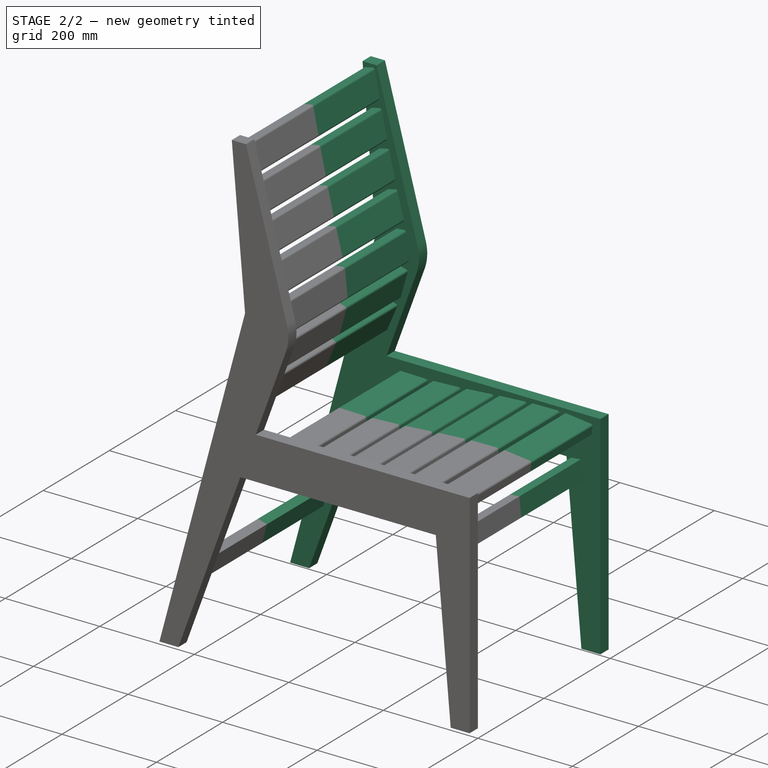
[diagram: stage 2 of 2 — iso view after this stage's code; geometry added in this stage tinted green]
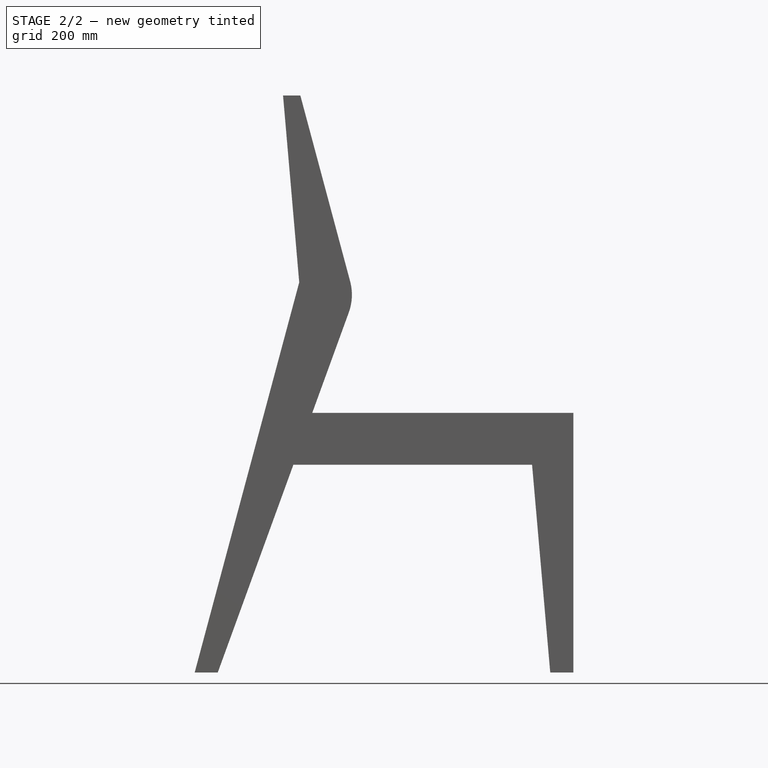
[diagram: stage 2 of 2 — front view after this stage's code; geometry added in this stage tinted green]
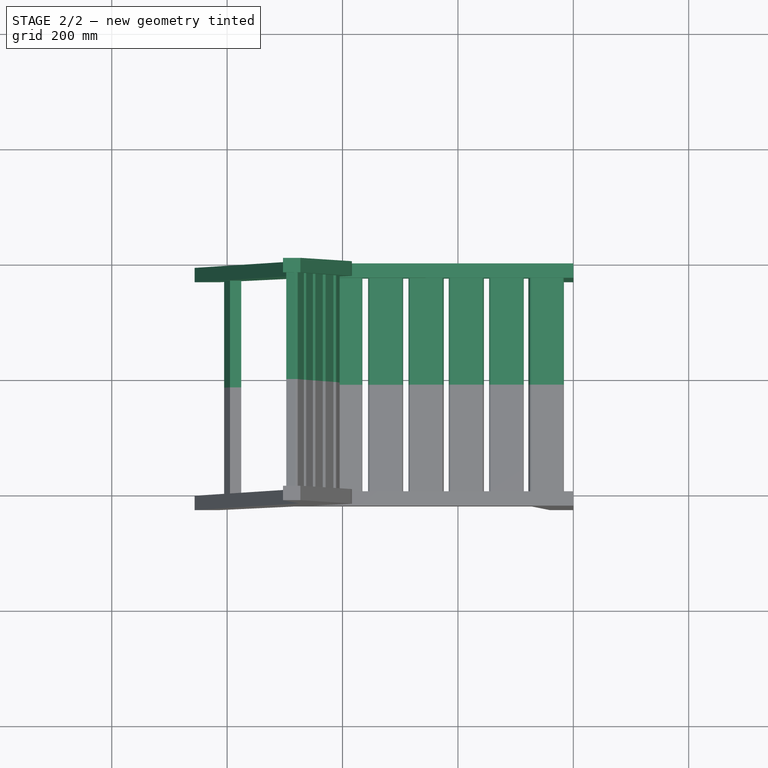
[diagram: stage 2 of 2 — top view after this stage's code; geometry added in this stage tinted green]
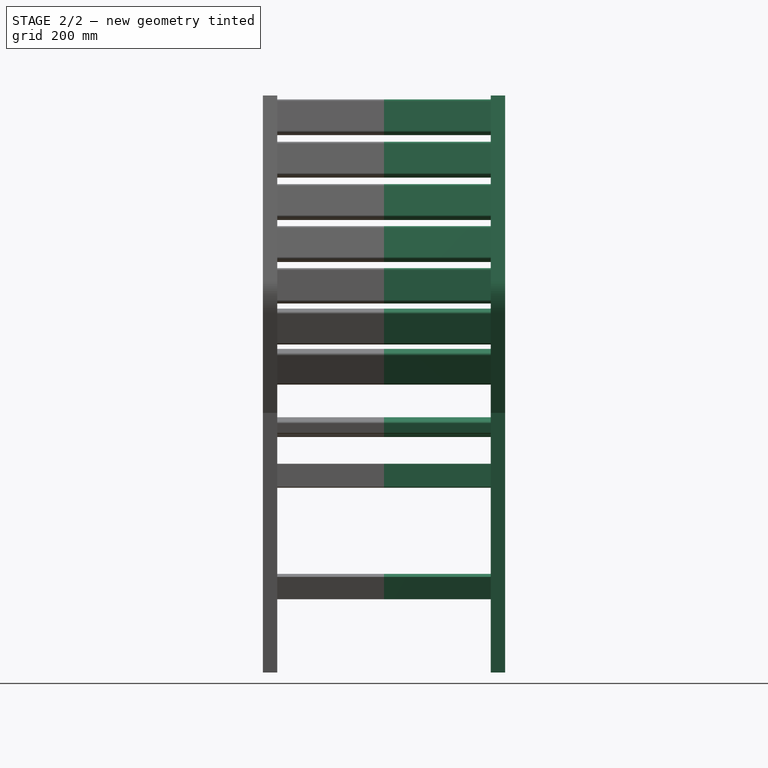
[diagram: stage 2 of 2 — right view after this stage's code; geometry added in this stage tinted green]
FEATURE [PartDesign::Mirrored] Mirrored
  BaseFeature = -> Pad001
  MirrorPlane = -> Pad001 [Face109]
  Originals = -> [Pad,Pad001]
  Placement = pos=(0,0,0) rot=(1,0,0;1.5708rad)
FEATURE [PartDesign::Body] Body
  Group = -> [Sketch,Sketch001,Pad,Pad001,Mirrored]
  Origin = -> Origin
  Tip = -> Mirrored
FEATURE [Sketcher::SketchObject] Sketch002
  FullyConstrained = false
  Placement = pos=(0,0,0) rot=(1,0,0;1.5708rad)
  expr: Constraints[10] = <<Spreadsheet001>>.back_leg_angle
  expr: Constraints[17] = <<Spreadsheet001>>.total_height - <<Spreadsheet001>>.seat_height
  expr: Constraints[3] = <<Spreadsheet001>>.seat_height
  expr: Constraints[5] = <<Spreadsheet001>>.seat_length
  sketch-geometry (19):
    g0: LineSegment StartX=328.504 StartY=-90 StartZ=0 EndX=-85.2073 EndY=-90 EndZ=0
    g1: LineSegment StartX=400 StartY=0 StartZ=0 EndX=400 EndY=-450 EndZ=0
    g2: LineSegment StartX=400 StartY=-450 StartZ=0 EndX=360 EndY=-450 EndZ=0
    g3: LineSegment StartX=-216.237 StartY=-450 StartZ=0 EndX=-85.2073 EndY=-90 EndZ=0
    g4: LineSegment StartX=-256.237 StartY=-450 StartZ=0 EndX=-216.237 EndY=-450 EndZ=0
    g5: LineSegment StartX=-73.0621 StartY=550 StartZ=0 EndX=-103.062 EndY=550 EndZ=0
    g6: LineSegment StartX=-103.062 StartY=550 StartZ=0 EndX=-75.0633 EndY=226.148 EndZ=0
    g7: LineSegment StartX=-256.237 StartY=-450 StartZ=0 EndX=-75.0633 EndY=226.148 EndZ=0
    g8: LineSegment StartX=-216.237 StartY=-450 StartZ=0 EndX=20.5376 EndY=200.532 EndZ=0
    g9: LineSegment StartX=-73.1031 StartY=550.004 StartZ=0 EndX=20.5376 EndY=200.532 EndZ=0
    g10: LineSegment StartX=-75.0633 StartY=226.148 StartZ=0 EndX=20.5376 EndY=200.532 EndZ=0
    g11: LineSegment StartX=-52.45 StartY=0 StartZ=0 EndX=-85.2073 EndY=-90 EndZ=0
    g12: LineSegment StartX=360 StartY=-450 StartZ=0 EndX=320.63 EndY=0 EndZ=0
    g13: LineSegment StartX=-52.45 StartY=0 StartZ=0 EndX=320.63 EndY=0 EndZ=0
    g14: LineSegment StartX=320.63 StartY=0 StartZ=0 EndX=400 EndY=0 EndZ=0
    g15: LineSegment StartX=-157.902 StartY=535.306 StartZ=0 EndX=-75.109 EndY=557.49 EndZ=0
    g16: LineSegment StartX=-75.109 StartY=557.49 StartZ=0 EndX=20.5376 EndY=200.532 EndZ=0
    g17: LineSegment StartX=20.5376 StartY=200.532 StartZ=0 EndX=-62.2552 EndY=178.348 EndZ=0
    g18: LineSegment StartX=-62.2552 StartY=178.348 StartZ=0 EndX=-157.902 EndY=535.306 EndZ=0
  constraints (52):
    c: Horizontal(g0)
    c: Coincident(g1,g2)
    c: Horizontal(g2)
    c: DistanceY(g1,g1) = 450
    c: PointOnObject(g3,g2)
    c: DistanceX(g-1,g1) = 400
    c: Coincident(g3,g0)
    c: DistanceX(g2,g1) = 40
    c: Coincident(g4,g3)
    c: Horizontal(g4)
    c: Angle(g3,g0) = 1.91986
    c: PointOnObject(g11,g-1)
    c: PointOnObject(g11,g3)
    c: Horizontal(g5)
    c: DistanceY(g0,g11) = 90
    c: Coincident(g6,g5)
    c: Coincident(g7,g4)
    c: DistanceY(g11,g5) = 550
    c: DistanceX(g4,g4) = 40
    c: DistanceX(g11,g1) = 452.45
    c: Coincident(g6,g7)
    c: Angle(g4,g7) = 1.309
    c: Distance(g7) = 700
    c: Coincident(g8,g3)
    c: Coincident(g9,g8)
    c: Coincident(g10,g6)
    c: Coincident(g10,g8)
    c: Coincident(g11,g0)
    c: Coincident(g12,g2)
    c: Angle(g7,g10) = 1.5708
    c: Distance(g5) = 30
    c: Coincident(g13,g11)
    c: Coincident(g13,g12)
    c: Horizontal(g13)
    c: Coincident(g14,g12)
    c: Coincident(g14,g1)
    c: Horizontal(g14)
    c: Angle(g8,g4) = 1.91986
    c: Angle(g9,g10) = 1.0472
    c: Distance(g9) = 361.8
    c: Distance(g6) = 325.06
    c: Coincident(g15,g16)
    c: Coincident(g16,g17)
    c: Coincident(g17,g18)
    c: Coincident(g18,g15)
    c: Coincident(g16,g8)
    c: Perpendicular(g16,g15)
    c: Perpendicular(g17,g18)
    c: Perpendicular(g18,g15)
    c: PointOnObject(g9,g16)
    c: PointOnObject(g6,g18)
    c: PointOnObject(g5,g15)
FEATURE [TechDraw::DrawSVGTemplate] Template
  Height = 215.9
  Orientation = 1
  Template = <path>
  Width = 279.4
FEATURE [TechDraw::DrawProjGroupItem] ProjItem  label="Front"
  CoarseView = false
  Direction = (0,-1,0)
  Focus = 100
  HardHidden = false
  IsoCount = 0
  IsoHidden = false
  IsoVisible = false
  LockPosition = true
  Perspective = false
  Rotation = 0
  RotationVector = (1,0,-1e-06)
  Scale = 0.25
  ScaleType = 2
  ScrubCount = 0
  SeamHidden = false
  SeamVisible = false
  SmoothHidden = false
  SmoothVisible = true
  Source = -> [Sketch002]
  Type = 0
  X = 0
  XDirection = (1e-06,0,1)
  Y = 0
FEATURE [TechDraw::DrawProjGroup] ProjGroup
  Anchor = -> ProjItem
  AutoDistribute = true
  LockPosition = false
  ProjectionType = 0
  Rotation = 0
  Scale = 0.25
  ScaleType = 2
  Source = -> [Sketch002]
  Views = -> [ProjItem]
  X = 142.357
  Y = 111.143
  spacingX = 15
  spacingY = 15
FEATURE [TechDraw::DrawViewDimension] Dimension
  AngleOverride = false
  Arbitrary = false
  ArbitraryTolerances = false
  EqualTolerance = true
  ExtensionAngle = 0
  FormatSpec = %.0w
  FormatSpecOverTolerance = %+.2w
  FormatSpecUnderTolerance = %+.2w
  Inverted = false
  LineAngle = 0
  LockPosition = false
  MeasureType = 1
  OverTolerance = 0
  References2D = -> [ProjItem]
  Rotation = 0
  ScaleType = 0
  TheoreticalExact = false
  Type = 0
  UnderTolerance = 0
  X = 79.755
  Y = 24.263
FEATURE [TechDraw::DrawViewDimension] Dimension001
  AngleOverride = false
  Arbitrary = false
  ArbitraryTolerances = false
  EqualTolerance = true
  ExtensionAngle = 0
  FormatSpec = %.2w
  FormatSpecOverTolerance = %+.2w
  FormatSpecUnderTolerance = %+.2w
  Inverted = false
  LineAngle = 0
  LockPosition = false
  MeasureType = 1
  OverTolerance = 0
  References2D = -> [ProjItem]
  Rotation = 0
  ScaleType = 0
  TheoreticalExact = false
  Type = 6
  UnderTolerance = 0
  X = 119.327
  Y = 41.463
FEATURE [TechDraw::DrawViewDimension] Dimension002
  AngleOverride = false
  Arbitrary = false
  ArbitraryTolerances = false
  EqualTolerance = true
  ExtensionAngle = 0
  FormatSpec = %.2w
  FormatSpecOverTolerance = %+.2w
  FormatSpecUnderTolerance = %+.2w
  Inverted = false
  LineAngle = 0
  LockPosition = false
  MeasureType = 1
  OverTolerance = 0
  References2D = -> [ProjItem]
  Rotation = 0
  ScaleType = 0
  TheoreticalExact = false
  Type = 6
  UnderTolerance = 0
  X = 42.9954
  Y = 22.2957
FEATURE [TechDraw::DrawViewDimension] Dimension003
  AngleOverride = false
  Arbitrary = false
  ArbitraryTolerances = false
  EqualTolerance = true
  ExtensionAngle = 0
  FormatSpec = %.0w
  FormatSpecOverTolerance = %+.2w
  FormatSpecUnderTolerance = %+.2w
  Inverted = false
  LineAngle = 0
  LockPosition = false
  MeasureType = 1
  OverTolerance = 0
  References2D = -> [ProjItem]
  Rotation = 0
  ScaleType = 0
  TheoreticalExact = false
  Type = 6
  UnderTolerance = 0
  X = 49.9273
  Y = 31.6845
FEATURE [TechDraw::DrawViewDimension] Dimension004
  AngleOverride = false
  Arbitrary = false
  ArbitraryTolerances = false
  EqualTolerance = true
  ExtensionAngle = 0
  FormatSpec = %.2w
  FormatSpecOverTolerance = %+.2w
  FormatSpecUnderTolerance = %+.2w
  Inverted = false
  LineAngle = 0
  LockPosition = false
  MeasureType = 1
  OverTolerance = 0
  References2D = -> [ProjItem]
  Rotation = 0
  ScaleType = 0
  TheoreticalExact = false
  Type = 0
  UnderTolerance = 0
  X = -39.9096
  Y = 65.4074
FEATURE [TechDraw::DrawViewDimension] Dimension005
  AngleOverride = false
  Arbitrary = false
  ArbitraryTolerances = false
  EqualTolerance = true
  ExtensionAngle = 0
  FormatSpec = %.0w
  FormatSpecOverTolerance = %+.2w
  FormatSpecUnderTolerance = %+.2w
  Inverted = false
  LineAngle = 0
  LockPosition = false
  MeasureType = 1
  OverTolerance = 0
  References2D = -> [ProjItem]
  Rotation = 0
  ScaleType = 0
  TheoreticalExact = false
  Type = 0
  UnderTolerance = 0
  X = 18.98
  Y = 33.6766
FEATURE [TechDraw::DrawViewDimension] Dimension006
  AngleOverride = false
  Arbitrary = false
  ArbitraryTolerances = false
  EqualTolerance = true
  ExtensionAngle = 0
  FormatSpec = %.2w
  FormatSpecOverTolerance = %+.2w
  FormatSpecUnderTolerance = %+.2w
  Inverted = false
  LineAngle = 0
  LockPosition = false
  MeasureType = 1
  OverTolerance = 0
  References2D = -> [ProjItem]
  Rotation = 0
  ScaleType = 0
  TheoreticalExact = false
  Type = 6
  UnderTolerance = 0
  X = 31.0634
  Y = 23.6711
FEATURE [TechDraw::DrawViewDimension] Dimension007
  AngleOverride = false
  Arbitrary = false
  ArbitraryTolerances = false
  EqualTolerance = true
  ExtensionAngle = 0
  FormatSpec = %.2w
  FormatSpecOverTolerance = %+.2w
  FormatSpecUnderTolerance = %+.2w
  Inverted = false
  LineAngle = 0
  LockPosition = false
  MeasureType = 1
  OverTolerance = 0
  References2D = -> [ProjItem]
  Rotation = 0
  ScaleType = 0
  TheoreticalExact = false
  Type = 0
  UnderTolerance = 0
  X = -128.599
  Y = 78.2493
FEATURE [TechDraw::DrawViewDimension] Dimension008
  AngleOverride = false
  Arbitrary = false
  ArbitraryTolerances = false
  EqualTolerance = true
  ExtensionAngle = 0
  FormatSpec = %.0w
  FormatSpecOverTolerance = %+.2w
  FormatSpecUnderTolerance = %+.2w
  Inverted = false
  LineAngle = 0
  LockPosition = false
  MeasureType = 1
  OverTolerance = 0
  References2D = -> [ProjItem]
  Rotation = 0
  ScaleType = 0
  TheoreticalExact = false
  Type = 0
  UnderTolerance = 0
  X = -42.8022
  Y = -9.96072
FEATURE [TechDraw::DrawViewDimension] Dimension009
  AngleOverride = false
  Arbitrary = false
  ArbitraryTolerances = false
  EqualTolerance = true
  ExtensionAngle = 0
  FormatSpec = %.2w
  FormatSpecOverTolerance = %+.2w
  FormatSpecUnderTolerance = %+.2w
  Inverted = false
  LineAngle = 0
  LockPosition = false
  MeasureType = 1
  OverTolerance = 0
  References2D = -> [ProjItem]
  Rotation = 0
  ScaleType = 0
  TheoreticalExact = false
  Type = 6
  UnderTolerance = 0
  X = -28.5327
  Y = 30.8472
FEATURE [TechDraw::DrawViewDimension] Dimension010
  AngleOverride = false
  Arbitrary = false
  ArbitraryTolerances = false
  EqualTolerance = true
  ExtensionAngle = 0
  FormatSpec = %.2w
  FormatSpecOverTolerance = %+.2w
  FormatSpecUnderTolerance = %+.2w
  Inverted = false
  LineAngle = 0
  LockPosition = false
  MeasureType = 1
  OverTolerance = 0
  References2D = -> [ProjItem]
  Rotation = 0
  ScaleType = 0
  TheoreticalExact = false
  Type = 6
  UnderTolerance = 0
  X = -27.4302
  Y = -51.4896
FEATURE [TechDraw::DrawViewDimension] Dimension011
  AngleOverride = false
  Arbitrary = false
  ArbitraryTolerances = false
  EqualTolerance = true
  ExtensionAngle = 0
  FormatSpec = %.0w
  FormatSpecOverTolerance = %+.2w
  FormatSpecUnderTolerance = %+.2w
  Inverted = false
  LineAngle = 0
  LockPosition = false
  MeasureType = 1
  OverTolerance = 0
  References2D = -> [ProjItem]
  Rotation = 0
  ScaleType = 0
  TheoreticalExact = false
  Type = 0
  UnderTolerance = 0
  X = -8.11146
  Y = -71.0286
FEATURE [TechDraw::DrawViewDimension] Dimension012
  AngleOverride = false
  Arbitrary = false
  ArbitraryTolerances = false
  EqualTolerance = true
  ExtensionAngle = 0
  FormatSpec = %.2w
  FormatSpecOverTolerance = %+.2w
  FormatSpecUnderTolerance = %+.2w
  Inverted = false
  LineAngle = 0
  LockPosition = false
  MeasureType = 1
  OverTolerance = 0
  References2D = -> [ProjItem]
  Rotation = 0
  ScaleType = 0
  TheoreticalExact = false
  Type = 0
  UnderTolerance = 0
  X = -69.6861
  Y = -82.9116
FEATURE [TechDraw::DrawViewDimension] Dimension013
  AngleOverride = false
  Arbitrary = false
  ArbitraryTolerances = false
  EqualTolerance = true
  ExtensionAngle = 0
  FormatSpec = %.2w
  FormatSpecOverTolerance = %+.2w
  FormatSpecUnderTolerance = %+.2w
  Inverted = false
  LineAngle = 0
  LockPosition = false
  MeasureType = 1
  OverTolerance = 0
  References2D = -> [ProjItem]
  Rotation = 0
  ScaleType = 0
  TheoreticalExact = false
  Type = 6
  UnderTolerance = 0
  X = -121.206
  Y = -73.7459
FEATURE [TechDraw::DrawViewDimension] Dimension018
  AngleOverride = false
  Arbitrary = false
  ArbitraryTolerances = false
  EqualTolerance = true
  ExtensionAngle = 0
  FormatSpec = %.2w
  FormatSpecOverTolerance = %+.2w
  FormatSpecUnderTolerance = %+.2w
  Inverted = false
  LineAngle = 0
  LockPosition = false
  MeasureType = 1
  OverTolerance = 0
  References2D = -> [ProjItem]
  Rotation = 0
  ScaleType = 0
  TheoreticalExact = false
  Type = 6
  UnderTolerance = 0
  X = -123.312
  Y = 80.0163
FEATURE [TechDraw::DrawViewDimension] Dimension019
  AngleOverride = false
  Arbitrary = false
  ArbitraryTolerances = false
  EqualTolerance = true
  ExtensionAngle = 0
  FormatSpec = %.0w
  FormatSpecOverTolerance = %+.2w
  FormatSpecUnderTolerance = %+.2w
  Inverted = false
  LineAngle = 0
  LockPosition = false
  MeasureType = 1
  OverTolerance = 0
  References2D = -> [ProjItem]
  Rotation = 0
  ScaleType = 0
  TheoreticalExact = false
  Type = 0
  UnderTolerance = 0
  X = 127.239
  Y = 50.1066
FEATURE [TechDraw::DrawViewDimension] Dimension020
  AngleOverride = false
  Arbitrary = false
  ArbitraryTolerances = false
  EqualTolerance = true
  ExtensionAngle = 0
  FormatSpec = %.0w
  FormatSpecOverTolerance = %+.2w
  FormatSpecUnderTolerance = %+.2w
  Inverted = false
  LineAngle = 0
  LockPosition = false
  MeasureType = 1
  OverTolerance = 0
  References2D = -> [ProjItem]
  Rotation = 0
  ScaleType = 0
  TheoreticalExact = false
  Type = 6
  UnderTolerance = 0
  X = 117.337
  Y = 50.4198
FEATURE [TechDraw::DrawViewDimension] Dimension021
  AngleOverride = false
  Arbitrary = false
  ArbitraryTolerances = false
  EqualTolerance = true
  ExtensionAngle = 0
  FormatSpec = %.2w
  FormatSpecOverTolerance = %+.2w
  FormatSpecUnderTolerance = %+.2w
  Inverted = false
  LineAngle = 0
  LockPosition = false
  MeasureType = 1
  OverTolerance = 0
  References2D = -> [ProjItem]
  Rotation = 0
  ScaleType = 0
  TheoreticalExact = false
  Type = 0
  UnderTolerance = 0
  X = -24.8833
  Y = 23.5165
FEATURE [Spreadsheet::Sheet] Spreadsheet001
  cells = A1='seat length; B1(seat_length)=400; A2='seat height; B2(seat_height)=450; A3='back angle; B3(back_angle)=105; A4='chair width; B4(chair_width)=450; A5='slats thickness; B5(slat_thickness)=18; A6='back slats height; B6(back_slat_width)=60; A7='seat slats width; B7(seat_slat_width)=80; A8='seat slats thickness; B8(seat_slat_thickness)=18; A9='total height; B9(total_height)=1000; A10='lumbar support end height; B10(lumbar_end_height)=250; A11='back slat gap; B11(back_slat_gap)=15; A12='back slat thickness; B12(back_slat_thickness)=15; A13='seat slat gap; B13(seat_slat_gap)=10; A14='back leg angle to surface; B14(back_leg_angle)=110; A15='draft back; B15(draft_back)=5; A16='side thickness; B16(side_thickness)=20
FEATURE [Sketcher::SketchObject] Sketch003
  FullyConstrained = true
  Placement = pos=(0,0,0) rot=(1,0,0;1.5708rad)
  expr: Constraints[16] = <<Spreadsheet002>>.back_angle
  expr: Constraints[17] = <<Spreadsheet002>>.back_leg_angle
  expr: Constraints[26] = <<Spreadsheet002>>.total_height - <<Spreadsheet002>>.seat_height
  expr: Constraints[5] = <<Spreadsheet002>>.seat_height
  expr: Constraints[7] = <<Spreadsheet002>>.seat_length
  sketch-geometry (18):
    g0: LineSegment StartX=-52.45 StartY=0 StartZ=0 EndX=400 EndY=0 EndZ=0
    g1: LineSegment StartX=328.504 StartY=-90 StartZ=0 EndX=-85.2073 EndY=-90 EndZ=0
    g2: LineSegment StartX=400 StartY=0 StartZ=0 EndX=400 EndY=-450 EndZ=0
    g3: LineSegment StartX=400 StartY=-450 StartZ=0 EndX=360 EndY=-450 EndZ=0
    g4: LineSegment StartX=360 StartY=-450 StartZ=0 EndX=328.504 EndY=-90 EndZ=0
    g5: LineSegment StartX=-216.237 StartY=-450 StartZ=0 EndX=-85.2073 EndY=-90 EndZ=0
    g6: LineSegment StartX=-52.45 StartY=0 StartZ=0 EndX=10.8322 EndY=173.866 EndZ=0
    g7: LineSegment StartX=13.1932 StartY=227.942 StartZ=0 EndX=-73.1021 EndY=550 EndZ=0
    g8: LineSegment StartX=-256.237 StartY=-450 StartZ=0 EndX=-216.237 EndY=-450 EndZ=0
    g9: LineSegment StartX=-73.1021 StartY=550 StartZ=0 EndX=-103.102 EndY=550 EndZ=0
    g10: LineSegment StartX=-103.102 StartY=550 StartZ=0 EndX=-75.0633 EndY=226.148 EndZ=0
    g11: LineSegment StartX=-256.237 StartY=-450 StartZ=0 EndX=-75.0633 EndY=226.148 EndZ=0
    g12: ArcOfCircle CenterX=-73.7402 CenterY=204.648 CenterZ=0 NormalX=0 NormalY=0 NormalZ=1 AngleXU=0 Radius=90 StartAngle=5.93412 EndAngle=6.54498
    g13: LineSegment StartX=-216.237 StartY=-450 StartZ=0 EndX=20.5376 EndY=200.532 EndZ=0
    g14: LineSegment StartX=-73.1021 StartY=550 StartZ=0 EndX=20.5376 EndY=200.532 EndZ=0
    g15: LineSegment StartX=-75.0633 StartY=226.148 StartZ=0 EndX=20.5376 EndY=200.532 EndZ=0
    g16: LineSegment StartX=-52.45 StartY=0 StartZ=0 EndX=-85.2073 EndY=-90 EndZ=0
    g17: LineSegment StartX=360 StartY=-450 StartZ=0 EndX=320.63 EndY=0 EndZ=0
  constraints (50):
    c: Horizontal(g0)
    c: Horizontal(g1)
    c: Coincident(g2,g3)
    c: Horizontal(g3)
    c: Coincident(g4,g3)
    c: DistanceY(g2,g0) = 450
    c: PointOnObject(g5,g3)
    c: DistanceX(g-1,g0) = 400
    c: Coincident(g2,g0)
    c: Coincident(g5,g1)
    c: Coincident(g1,g4)
    c: Perpendicular(g2,g0)
    c: DistanceX(g3,g2) = 40
    c: Angle(g1,g4) = 1.65806
    c: Coincident(g8,g5)
    c: Horizontal(g8)
    c: Angle(g0,g7) = 1.8326
    c: Angle(g5,g1) = 1.91986
    c: PointOnObject(g0,g-1)
    c: Coincident(g0,g6)
    c: PointOnObject(g0,g5)
    c: Coincident(g9,g7)
    c: Horizontal(g9)
    c: DistanceY(g1,g0) = 90
    c: Coincident(g10,g9)
    c: Coincident(g11,g8)
    c: DistanceY(g0,g7) = 550
    c: DistanceX(g8,g8) = 40
    c: DistanceX(g0,g0) = 452.45
    c: Tangent(g7,g12) = -1.5708
    c: Tangent(g6,g12) = -1.5708
    c: Coincident(g10,g11)
    c: Parallel(g6,g5)
    c: Angle(g8,g11) = 1.309
    c: Distance(g11) = 700
    c: Coincident(g13,g5)
    c: Coincident(g14,g7)
    c: Coincident(g14,g13)
    c: Parallel(g14,g7)
    c: Parallel(g13,g6)
    c: Coincident(g15,g10)
    c: Coincident(g15,g13)
    c: Coincident(g16,g0)
    c: Coincident(g16,g1)
    c: Coincident(g17,g3)
    c: PointOnObject(g17,g0)
    c: Parallel(g4,g17)
    c: Angle(g11,g15) = 1.5708
    c: Distance(g12,g7) = 90
    c: Distance(g9) = 30
FEATURE [Sketcher::SketchObject] Sketch004
  ExternalGeometry = -> [Sketch003]
  FullyConstrained = false
  MapMode = 5
  Placement = pos=(0,0,0) rot=(0,0.707107,0.707107;3.14159rad)
  expr: Constraints[116] = <<Spreadsheet002>>.seat_slat_gap
  expr: Constraints[137] = <<Spreadsheet002>>.seat_slat_gap
  expr: Constraints[158] = <<Spreadsheet002>>.seat_slat_gap
  expr: Constraints[208] = <<Spreadsheet002>>.back_slat_gap
  expr: Constraints[265] = <<Spreadsheet002>>.back_slat_gap
  expr: Constraints[304] = <<Spreadsheet002>>.back_slat_gap
  expr: Constraints[311] = <<Spreadsheet002>>.back_slat_gap
  expr: Constraints[312] = <<Spreadsheet002>>.back_slat_gap
  expr: Constraints[313] = <<Spreadsheet002>>.back_slat_gap
  expr: Constraints[73] = Spreadsheet002.seat_slat_gap
  expr: Constraints[95] = <<Spreadsheet002>>.seat_slat_gap
  sketch-geometry (138):
    g0-g3: Circle x4 (B-spline internal-alignment scaffolding for g4; pole/knot coordinates omitted)
    g4: BSplineCurve PolesCount=4 KnotsCount=2 Degree=3 IsPeriodic=0
    g5: GeomPoint X=-385 Y=-15 Z=0
    g6: GeomPoint X=32.45 Y=-20 Z=0
    g7-g11: Circle x5 (B-spline internal-alignment scaffolding for g12; pole/knot coordinates omitted)
    g12: BSplineCurve PolesCount=5 KnotsCount=3 Degree=3 IsPeriodic=0
    g13: GeomPoint X=72.45 Y=0 Z=0
    g14: GeomPoint X=5.10565 Y=196.674 Z=0
    g15: GeomPoint X=78.1021 Y=545 Z=0
    g16: LineSegment StartX=-380.084 StartY=-14.0871 StartZ=0 EndX=-328.406 EndY=-8.30519 EndZ=0
    g17: LineSegment StartX=-323.987 StartY=-11.8356 StartZ=0 EndX=-322.207 EndY=-27.7364 EndZ=0
    g18: LineSegment StartX=-322.207 StartY=-27.7364 StartZ=0 EndX=-381.835 EndY=-34.4078 EndZ=0
    g19: LineSegment StartX=-381.835 StartY=-34.4078 StartZ=0 EndX=-383.614 EndY=-18.507 EndZ=0
    g20: Circle CenterX=-368.04 CenterY=-22.802 CenterZ=0 NormalX=0 NormalY=0 NormalZ=1 AngleXU=0 Radius=4
    g21: Circle CenterX=-338.226 CenterY=-19.4663 CenterZ=0 NormalX=0 NormalY=0 NormalZ=1 AngleXU=0 Radius=4
    g22: Circle CenterX=-353.133 CenterY=-21.1341 CenterZ=0 NormalX=0 NormalY=0 NormalZ=1 AngleXU=0 Radius=4
    g23: ArcOfCircle CenterX=-379.639 CenterY=-18.0623 CenterZ=0 NormalX=0 NormalY=0 NormalZ=1 AngleXU=0 Radius=4 StartAngle=1.68222 EndAngle=3.25301
    g24: ArcOfCircle CenterX=-327.962 CenterY=-12.2804 CenterZ=0 NormalX=0 NormalY=0 NormalZ=1 AngleXU=0 Radius=4 StartAngle=0.111421 EndAngle=1.68222
    g25: LineSegment StartX=-309.95 StartY=-7.58404 StartZ=0 EndX=-257.953 EndY=-8.12058 EndZ=0
    g26: LineSegment StartX=-253.994 StartY=-12.1616 StartZ=0 EndX=-254.159 EndY=-28.1608 EndZ=0
    g27: LineSegment StartX=-254.159 StartY=-28.1608 StartZ=0 EndX=-314.156 EndY=-27.5417 EndZ=0
    g28: LineSegment StartX=-314.156 StartY=-27.5417 StartZ=0 EndX=-313.991 EndY=-11.5426 EndZ=0
    g29: Circle CenterX=-299.054 CenterY=-17.697 CenterZ=0 NormalX=0 NormalY=0 NormalZ=1 AngleXU=0 Radius=4
    g30: Circle CenterX=-269.055 CenterY=-18.0066 CenterZ=0 NormalX=0 NormalY=0 NormalZ=1 AngleXU=0 Radius=4
    g31: Circle CenterX=-284.054 CenterY=-17.8518 CenterZ=0 NormalX=0 NormalY=0 NormalZ=1 AngleXU=0 Radius=4
    g32: ArcOfCircle CenterX=-309.991 CenterY=-11.5838 CenterZ=0 NormalX=0 NormalY=0 NormalZ=1 AngleXU=0 Radius=4 StartAngle=1.56048 EndAngle=3.13127
    g33: ArcOfCircle CenterX=-257.994 CenterY=-12.1204 CenterZ=0 NormalX=0 NormalY=0 NormalZ=1 AngleXU=0 Radius=4 StartAngle=6.27287 EndAngle=7.84366
    g34: LineSegment StartX=-239.752 StartY=-8.95899 StartZ=0 EndX=-187.866 EndY=-12.4041 EndZ=0
    g35: LineSegment StartX=-184.14 StartY=-16.6604 StartZ=0 EndX=-185.2 EndY=-32.6252 EndZ=0
    g36: LineSegment StartX=-185.2 StartY=-32.6252 StartZ=0 EndX=-245.068 EndY=-28.65 EndZ=0
    g37: LineSegment StartX=-245.068 StartY=-28.65 StartZ=0 EndX=-244.008 EndY=-12.6852 EndZ=0
    g38: Circle CenterX=-229.438 CenterY=-19.6658 CenterZ=0 NormalX=0 NormalY=0 NormalZ=1 AngleXU=0 Radius=4
    g39: Circle CenterX=-199.504 CenterY=-21.6534 CenterZ=0 NormalX=0 NormalY=0 NormalZ=1 AngleXU=0 Radius=4
    g40: Circle CenterX=-214.471 CenterY=-20.6596 CenterZ=0 NormalX=0 NormalY=0 NormalZ=1 AngleXU=0 Radius=4
    g41: ArcOfCircle CenterX=-240.017 CenterY=-12.9502 CenterZ=0 NormalX=0 NormalY=0 NormalZ=1 AngleXU=0 Radius=4 StartAngle=1.50449 EndAngle=3.07529
    g42: ArcOfCircle CenterX=-188.131 CenterY=-16.3954 CenterZ=0 NormalX=0 NormalY=0 NormalZ=1 AngleXU=0 Radius=4 StartAngle=6.21688 EndAngle=7.78768
    g43: LineSegment StartX=-169.881 StartY=-13.7919 StartZ=0 EndX=-118.031 EndY=-17.7361 EndZ=0
    g44: LineSegment StartX=-114.346 StartY=-22.028 StartZ=0 EndX=-115.559 EndY=-37.9819 EndZ=0
    g45: LineSegment StartX=-115.559 StartY=-37.9819 StartZ=0 EndX=-175.387 EndY=-33.4309 EndZ=0
    g46: LineSegment StartX=-175.387 StartY=-33.4309 StartZ=0 EndX=-174.173 EndY=-17.477 EndZ=0
    g47: Circle CenterX=-159.671 CenterY=-24.5975 CenterZ=0 NormalX=0 NormalY=0 NormalZ=1 AngleXU=0 Radius=4
    g48: Circle CenterX=-129.758 CenterY=-26.873 CenterZ=0 NormalX=0 NormalY=0 NormalZ=1 AngleXU=0 Radius=4
    g49: Circle CenterX=-144.714 CenterY=-25.7352 CenterZ=0 NormalX=0 NormalY=0 NormalZ=1 AngleXU=0 Radius=4
    g50: ArcOfCircle CenterX=-170.184 CenterY=-17.7804 CenterZ=0 NormalX=0 NormalY=0 NormalZ=1 AngleXU=0 Radius=4 StartAngle=1.49487 EndAngle=3.06567
    g51: ArcOfCircle CenterX=-118.334 CenterY=-21.7246 CenterZ=0 NormalX=0 NormalY=0 NormalZ=1 AngleXU=0 Radius=4 StartAngle=6.20726 EndAngle=7.77806
    g52: LineSegment StartX=-100.187 StartY=-18.9316 StartZ=0 EndX=-48.245 EndY=-21.3777 EndZ=0
    g53: LineSegment StartX=-44.4375 StartY=-25.5614 StartZ=0 EndX=-45.1902 EndY=-41.5437 EndZ=0
    g54: LineSegment StartX=-45.1902 StartY=-41.5437 StartZ=0 EndX=-105.124 EndY=-38.7213 EndZ=0
    g55: LineSegment StartX=-105.124 StartY=-38.7213 StartZ=0 EndX=-104.371 EndY=-22.7391 EndZ=0
    g56: Circle CenterX=-89.67 CenterY=-29.438 CenterZ=0 NormalX=0 NormalY=0 NormalZ=1 AngleXU=0 Radius=4
    g57: Circle CenterX=-59.7032 CenterY=-30.8492 CenterZ=0 NormalX=0 NormalY=0 NormalZ=1 AngleXU=0 Radius=4
    g58: Circle CenterX=-74.6866 CenterY=-30.1436 CenterZ=0 NormalX=0 NormalY=0 NormalZ=1 AngleXU=0 Radius=4
    g59: ArcOfCircle CenterX=-100.376 CenterY=-22.9272 CenterZ=0 NormalX=0 NormalY=0 NormalZ=1 AngleXU=0 Radius=4 StartAngle=1.52374 EndAngle=3.09454
    g60: ArcOfCircle CenterX=-48.4331 CenterY=-25.3732 CenterZ=0 NormalX=0 NormalY=0 NormalZ=1 AngleXU=0 Radius=4 StartAngle=6.23613 EndAngle=7.80693
    g61: LineSegment StartX=-30.5206 StartY=-21.7209 StartZ=0 EndX=21.4692 EndY=-20.6884 EndZ=0
    g62: LineSegment StartX=25.5478 StartY=-24.6082 StartZ=0 EndX=25.8655 EndY=-40.6051 EndZ=0
    g63: LineSegment StartX=25.8655 StartY=-40.6051 StartZ=0 EndX=-34.1227 EndY=-41.7964 EndZ=0
    g64: LineSegment StartX=-34.1227 StartY=-41.7964 StartZ=0 EndX=-34.4404 EndY=-25.7995 EndZ=0
    g65: Circle CenterX=-19.3242 CenterY=-31.5005 CenterZ=0 NormalX=0 NormalY=0 NormalZ=1 AngleXU=0 Radius=4
    g66: Circle CenterX=10.6699 CenterY=-30.9049 CenterZ=0 NormalX=0 NormalY=0 NormalZ=1 AngleXU=0 Radius=4
    g67: Circle CenterX=-4.32716 CenterY=-31.2027 CenterZ=0 NormalX=0 NormalY=0 NormalZ=1 AngleXU=0 Radius=4
    g68: ArcOfCircle CenterX=-30.4412 CenterY=-25.7201 CenterZ=0 NormalX=0 NormalY=0 NormalZ=1 AngleXU=0 Radius=4 StartAngle=1.59065 EndAngle=3.16145
    g69: ArcOfCircle CenterX=21.5486 CenterY=-24.6876 CenterZ=0 NormalX=0 NormalY=0 NormalZ=1 AngleXU=0 Radius=4 StartAngle=0.0198564 EndAngle=1.59065
    g70: LineSegment StartX=67.1389 StartY=489.064 StartZ=0 EndX=77.1683 EndY=540.088 EndZ=0
    g71: LineSegment StartX=81.8647 StartY=543.241 StartZ=0 EndX=97.5643 EndY=540.155 EndZ=0
    g72: LineSegment StartX=97.5643 StartY=540.155 StartZ=0 EndX=85.9918 EndY=481.282 EndZ=0
    g73: LineSegment StartX=85.9918 StartY=481.282 StartZ=0 EndX=70.2923 EndY=484.368 EndZ=0
    g74: Circle CenterX=79.0727 CenterY=497.929 CenterZ=0 NormalX=0 NormalY=0 NormalZ=1 AngleXU=0 Radius=4
    g75: Circle CenterX=84.8589 CenterY=527.366 CenterZ=0 NormalX=0 NormalY=0 NormalZ=1 AngleXU=0 Radius=4
    g76: Circle CenterX=81.9658 CenterY=512.647 CenterZ=0 NormalX=0 NormalY=0 NormalZ=1 AngleXU=0 Radius=4
    g77: ArcOfCircle CenterX=71.0638 CenterY=488.293 CenterZ=0 NormalX=0 NormalY=0 NormalZ=1 AngleXU=0 Radius=4 StartAngle=2.9475 EndAngle=4.5183
    g78: ArcOfCircle CenterX=81.0932 CenterY=539.316 CenterZ=0 NormalX=0 NormalY=0 NormalZ=1 AngleXU=0 Radius=4 StartAngle=1.37671 EndAngle=2.9475
    g79: LineSegment StartX=51.5336 StartY=415.784 StartZ=0 EndX=62.5187 EndY=466.61 EndZ=0
    g80: LineSegment StartX=67.2735 StartY=469.675 StartZ=0 EndX=82.9124 EndY=466.295 EndZ=0
    g81: LineSegment StartX=82.9124 StartY=466.295 StartZ=0 EndX=70.2373 EndY=407.649 EndZ=0
    g82: LineSegment StartX=70.2373 StartY=407.649 StartZ=0 EndX=54.5984 EndY=411.029 EndZ=0
    g83: Circle CenterX=63.6317 CenterY=424.423 CenterZ=0 NormalX=0 NormalY=0 NormalZ=1 AngleXU=0 Radius=4
    g84: Circle CenterX=69.9693 CenterY=453.746 CenterZ=0 NormalX=0 NormalY=0 NormalZ=1 AngleXU=0 Radius=4
    g85: Circle CenterX=66.8005 CenterY=439.084 CenterZ=0 NormalX=0 NormalY=0 NormalZ=1 AngleXU=0 Radius=4
    g86: ArcOfCircle CenterX=55.4434 CenterY=414.939 CenterZ=0 NormalX=0 NormalY=0 NormalZ=1 AngleXU=0 Radius=4 StartAngle=2.92874 EndAngle=4.49953
    g87: ArcOfCircle CenterX=66.4285 CenterY=465.765 CenterZ=0 NormalX=0 NormalY=0 NormalZ=1 AngleXU=0 Radius=4 StartAngle=1.35794 EndAngle=2.92874
    g88: LineSegment StartX=34.3464 StartY=342.872 StartZ=0 EndX=46.453 EndY=393.443 EndZ=0
    g89: LineSegment StartX=51.2744 StartY=396.402 StartZ=0 EndX=66.8347 EndY=392.677 EndZ=0
    g90: LineSegment StartX=66.8347 StartY=392.677 StartZ=0 EndX=52.8655 EndY=334.326 EndZ=0
    g91: LineSegment StartX=52.8655 StartY=334.326 StartZ=0 EndX=37.3052 EndY=338.051 EndZ=0
    g92: Circle CenterX=46.6326 CenterY=351.242 CenterZ=0 NormalX=0 NormalY=0 NormalZ=1 AngleXU=0 Radius=4
    g93: Circle CenterX=53.6172 CenterY=380.417 CenterZ=0 NormalX=0 NormalY=0 NormalZ=1 AngleXU=0 Radius=4
    g94: Circle CenterX=50.1249 CenterY=365.829 CenterZ=0 NormalX=0 NormalY=0 NormalZ=1 AngleXU=0 Radius=4
    g95: ArcOfCircle CenterX=38.2365 CenterY=341.941 CenterZ=0 NormalX=0 NormalY=0 NormalZ=1 AngleXU=0 Radius=4 StartAngle=2.90662 EndAngle=4.47741
    g96: ArcOfCircle CenterX=50.3431 CenterY=392.512 CenterZ=0 NormalX=0 NormalY=0 NormalZ=1 AngleXU=0 Radius=4 StartAngle=1.33582 EndAngle=2.90662
    g97: LineSegment StartX=15.9879 StartY=270.209 StartZ=0 EndX=28.7688 EndY=320.614 EndZ=0
    g98: LineSegment StartX=33.6293 StartY=323.508 StartZ=0 EndX=49.1385 EndY=319.576 EndZ=0
    g99: LineSegment StartX=49.1385 StartY=319.576 StartZ=0 EndX=34.3913 EndY=261.416 EndZ=0
    g100: LineSegment StartX=34.3913 StartY=261.416 StartZ=0 EndX=18.8821 EndY=265.349 EndZ=0
    g101: Circle CenterX=28.3848 CenterY=278.414 CenterZ=0 NormalX=0 NormalY=0 NormalZ=1 AngleXU=0 Radius=4
    g102: Circle CenterX=35.7584 CenterY=307.494 CenterZ=0 NormalX=0 NormalY=0 NormalZ=1 AngleXU=0 Radius=4
    g103: Circle CenterX=32.0716 CenterY=292.954 CenterZ=0 NormalX=0 NormalY=0 NormalZ=1 AngleXU=0 Radius=4
    g104: ArcOfCircle CenterX=19.8652 CenterY=269.226 CenterZ=0 NormalX=0 NormalY=0 NormalZ=1 AngleXU=0 Radius=4 StartAngle=2.89326 EndAngle=4.46406
    g105: ArcOfCircle CenterX=32.6461 CenterY=319.631 CenterZ=0 NormalX=0 NormalY=0 NormalZ=1 AngleXU=0 Radius=4 StartAngle=1.32247 EndAngle=2.89326
    g106: LineSegment StartX=5.14592 StartY=195.582 StartZ=0 EndX=10.6719 EndY=247.288 EndZ=0
    g107: LineSegment StartX=15.0743 StartY=250.84 StartZ=0 EndX=30.9837 EndY=249.14 EndZ=0
    g108: LineSegment StartX=30.9837 StartY=249.14 StartZ=0 EndX=24.6076 EndY=189.479 EndZ=0
    g109: LineSegment StartX=24.6076 StartY=189.479 StartZ=0 EndX=8.6982 EndY=191.18 EndZ=0
    g110: Circle CenterX=16.2582 CenterY=205.457 CenterZ=0 NormalX=0 NormalY=0 NormalZ=1 AngleXU=0 Radius=4
    g111: Circle CenterX=19.4463 CenterY=235.287 CenterZ=0 NormalX=0 NormalY=0 NormalZ=1 AngleXU=0 Radius=4
    g112: Circle CenterX=17.8523 CenterY=220.372 CenterZ=0 NormalX=0 NormalY=0 NormalZ=1 AngleXU=0 Radius=4
    g113: ArcOfCircle CenterX=9.12327 CenterY=195.157 CenterZ=0 NormalX=0 NormalY=0 NormalZ=1 AngleXU=0 Radius=4 StartAngle=3.03512 EndAngle=4.60592
    g114: ArcOfCircle CenterX=14.6492 CenterY=246.863 CenterZ=0 NormalX=0 NormalY=0 NormalZ=1 AngleXU=0 Radius=4 StartAngle=1.46433 EndAngle=3.03512
    g115: LineSegment StartX=21.8855 StartY=121.3 StartZ=0 EndX=7.87801 EndY=171.378 EndZ=0
    g116: LineSegment StartX=10.6527 StartY=176.308 StartZ=0 EndX=26.0612 EndY=180.618 EndZ=0
    g117: LineSegment StartX=26.0612 StartY=180.618 StartZ=0 EndX=42.2237 EndY=122.835 EndZ=0
    g118: LineSegment StartX=42.2237 StartY=122.835 StartZ=0 EndX=26.8151 EndY=118.525 EndZ=0
    g119: Circle CenterX=28.5527 CenterY=134.587 CenterZ=0 NormalX=0 NormalY=0 NormalZ=1 AngleXU=0 Radius=4
    g120: Circle CenterX=20.4715 CenterY=163.478 CenterZ=0 NormalX=0 NormalY=0 NormalZ=1 AngleXU=0 Radius=4
    g121: Circle CenterX=24.5121 CenterY=149.033 CenterZ=0 NormalX=0 NormalY=0 NormalZ=1 AngleXU=0 Radius=4
    g122: ArcOfCircle CenterX=25.7376 CenterY=122.378 CenterZ=0 NormalX=0 NormalY=0 NormalZ=1 AngleXU=0 Radius=4 StartAngle=3.41434 EndAngle=4.98513
    g123: ArcOfCircle CenterX=11.7302 CenterY=172.455 CenterZ=0 NormalX=0 NormalY=0 NormalZ=1 AngleXU=0 Radius=4 StartAngle=1.84354 EndAngle=3.41434
    g124: LineSegment StartX=50.4428 StartY=51.4374 StartZ=0 EndX=30.2338 EndY=99.3498 EndZ=0
    g125: LineSegment StartX=32.3648 StartY=104.59 StartZ=0 EndX=47.1071 EndY=110.808 EndZ=0
    g126: LineSegment StartX=47.1071 StartY=110.808 StartZ=0 EndX=70.4252 EndY=55.5246 EndZ=0
    g127: LineSegment StartX=70.4252 StartY=55.5246 StartZ=0 EndX=55.683 EndY=49.3064 EndZ=0
    g128: Circle CenterX=55.3818 CenterY=65.4591 CenterZ=0 NormalX=0 NormalY=0 NormalZ=1 AngleXU=0 Radius=4
    g129: Circle CenterX=43.7227 CenterY=93.1008 CenterZ=0 NormalX=0 NormalY=0 NormalZ=1 AngleXU=0 Radius=4
    g130: Circle CenterX=49.5522 CenterY=79.28 CenterZ=0 NormalX=0 NormalY=0 NormalZ=1 AngleXU=0 Radius=4
    g131: ArcOfCircle CenterX=54.1284 CenterY=52.992 CenterZ=0 NormalX=0 NormalY=0 NormalZ=1 AngleXU=0 Radius=4 StartAngle=3.54074 EndAngle=5.11154
    g132: ArcOfCircle CenterX=33.9193 CenterY=100.904 CenterZ=0 NormalX=0 NormalY=0 NormalZ=1 AngleXU=0 Radius=4 StartAngle=1.96995 EndAngle=3.54074
    g133: LineSegment StartX=-400 StartY=-75.6992 StartZ=0 EndX=-400 EndY=0 EndZ=0
    g134: LineSegment StartX=-400 StartY=0 StartZ=0 EndX=52.45 EndY=0 EndZ=0
    g135: LineSegment StartX=52.45 StartY=0 StartZ=0 EndX=-10.8322 EndY=173.866 EndZ=0
    g136: LineSegment StartX=-10.8322 StartY=173.866 StartZ=0 EndX=-13.1932 EndY=227.942 EndZ=0
    g137: LineSegment StartX=-13.1932 StartY=227.942 StartZ=0 EndX=73.1021 EndY=550 EndZ=0
  constraints (314):
    c: Weight(g0) = 1
    c: Equal(g0,g1)
    c: Equal(g0,g2)
    c: Equal(g0,g3)
    c: InternalAlignment(g0-g3 -> g4) x4
    c: InternalAlignment(g5,g4)
    c: InternalAlignment(g6,g4)
    c: DistanceY(g4,g-4) = 15
    c: DistanceX(g-4,g4) = 15
    c: DistanceY(g4,g-1) = 20
    c: Weight(g7) = 1
    c: Equal(g7, g8-g11) x4
    c: InternalAlignment(g7-g11 -> g12) x5
    c: InternalAlignment(g13,g12)
    c: InternalAlignment(g14,g12)
    c: InternalAlignment(g15,g12)
    c: PointOnObject(g7,g-1)
    c: DistanceX(g3,g-6) = 20
    c: DistanceX(g-6,g7) = 20
    c: Coincident(g17,g18)
    c: Coincident(g18,g19)
    c: Distance(g20,g19) = 15
    c: Distance(g20,g16) = 10
    c: Equal(g20,g21) = 8
    c: Distance(g21,g16) = 10
    c: Equal(g20,g22) = 8
    c: Distance(g22,g16) = 10
    c: Distance(g22,g20) = 15
    c: Distance(g21,g17) = 15
    c: Parallel(g16,g18)
    c: Parallel(g19,g17)
    c: Tangent(g19,g23) = 1.5708
    c: Tangent(g16,g23) = 1.5708
    c: Tangent(g16,g24) = 1.5708
    c: Tangent(g17,g24) = 1.5708
    c: Perpendicular(g16,g17)
    c: Distance(g16,g18) = 20
    c: PointOnObject(g16,g4)
    c: DistanceX(g0,g1) = 120.432
    c: DistanceY(g0,g1) = 23.2776
    c: DistanceX(g2) = -111.477
    c: DistanceY(g2) = -30.2523
    c: PointOnObject(g16,g4)
    c: Coincident(g26,g27)
    c: Coincident(g27,g28)
    c: Distance(g29,g28) = 15
    c: Distance(g29,g25) = 10
    c: Equal(g29,g30) = 8
    c: Distance(g30,g25) = 10
    c: Equal(g29,g31) = 8
    c: Distance(g31,g25) = 10
    c: Distance(g31,g29) = 15
    c: Distance(g30,g26) = 15
    c: Parallel(g25,g27)
    c: Parallel(g28,g26)
    c: Tangent(g28,g32) = 1.5708
    c: Tangent(g25,g32) = 1.5708
    c: Tangent(g25,g33) = 1.5708
    c: Tangent(g26,g33) = 1.5708
    c: Perpendicular(g25,g26)
    c: Distance(g25,g27) = 20
    c: PointOnObject(g25,g4)
    c: PointOnObject(g25,g4)
    c: Distance(g17,g28) = 10
    c: Distance(g16,g0) = 5
    c: Coincident(g35,g36)
    c: Coincident(g36,g37)
    c: Distance(g38,g37) = 15
    c: Distance(g38,g34) = 10
    c: Equal(g38,g39) = 8
    c: Distance(g39,g34) = 10
    c: Equal(g38,g40) = 8
    c: Distance(g40,g34) = 10
    c: Distance(g40,g38) = 15
    c: Distance(g39,g35) = 15
    c: Parallel(g34,g36)
    c: Parallel(g37,g35)
    c: Tangent(g37,g41) = 1.5708
    c: Tangent(g34,g41) = 1.5708
    c: Tangent(g34,g42) = 1.5708
    c: Tangent(g35,g42) = 1.5708
    c: Perpendicular(g34,g35)
    c: Distance(g34,g36) = 20
    c: PointOnObject(g34,g4)
    c: PointOnObject(g34,g4)
    c: Distance(g26,g37) = 10
    c: Coincident(g44,g45)
    c: Coincident(g45,g46)
    c: Distance(g47,g46) = 15
    c: Distance(g47,g43) = 10
    c: Equal(g47,g48) = 8
    c: Distance(g48,g43) = 10
    c: Equal(g47,g49) = 8
    c: Distance(g49,g43) = 10
    c: Distance(g49,g47) = 15
    c: Distance(g48,g44) = 15
    c: Parallel(g43,g45)
    c: Parallel(g46,g44)
    c: Tangent(g46,g50) = 1.5708
    c: Tangent(g43,g50) = 1.5708
    c: Tangent(g43,g51) = 1.5708
    c: Tangent(g44,g51) = 1.5708
    c: Perpendicular(g43,g44)
    c: Distance(g43,g45) = 20
    c: PointOnObject(g43,g4)
    c: PointOnObject(g43,g4)
    c: Distance(g46,g35) = 10
    c: Coincident(g53,g54)
    c: Coincident(g54,g55)
    c: Distance(g56,g55) = 15
    c: Distance(g56,g52) = 10
    c: Equal(g56,g57) = 8
    c: Distance(g57,g52) = 10
    c: Equal(g56,g58) = 8
    c: Distance(g58,g52) = 10
    c: Distance(g58,g56) = 15
    c: Distance(g57,g53) = 15
    c: Parallel(g52,g54)
    c: Parallel(g55,g53)
    c: Tangent(g55,g59) = 1.5708
    c: Tangent(g52,g59) = 1.5708
    c: Tangent(g52,g60) = 1.5708
    c: Tangent(g53,g60) = 1.5708
    c: Perpendicular(g52,g53)
    c: Distance(g52,g54) = 20
    c: PointOnObject(g52,g4)
    c: PointOnObject(g52,g4)
    c: Distance(g44,g55) = 10
    c: Coincident(g62,g63)
    c: Coincident(g63,g64)
    c: Distance(g65,g64) = 15
    c: Distance(g65,g61) = 10
    c: Equal(g65,g66) = 8
    c: Distance(g66,g61) = 10
    c: Equal(g65,g67) = 8
    c: Distance(g67,g61) = 10
    c: Distance(g67,g65) = 15
    c: Distance(g66,g62) = 15
    c: Parallel(g61,g63)
    c: Parallel(g64,g62)
    c: Tangent(g64,g68) = 1.5708
    c: Tangent(g61,g68) = 1.5708
    c: Tangent(g61,g69) = 1.5708
    c: Tangent(g62,g69) = 1.5708
    c: Perpendicular(g61,g62)
    c: Distance(g61,g63) = 20
    c: PointOnObject(g61,g4)
    c: PointOnObject(g61,g4)
    c: Distance(g53,g64) = 10
    c: Coincident(g71,g72)
    c: Coincident(g72,g73)
    c: Distance(g74,g73) = 15
    c: Distance(g74,g70) = 10
    c: Equal(g74,g75) = 8
    c: Distance(g75,g70) = 10
    c: Equal(g74,g76) = 8
    c: Distance(g76,g70) = 10
    c: Distance(g76,g74) = 15
    c: Distance(g75,g71) = 15
    c: Parallel(g70,g72)
    c: Parallel(g73,g71)
    c: Tangent(g73,g77) = 1.5708
    c: Tangent(g70,g77) = 1.5708
    c: Tangent(g70,g78) = 1.5708
    c: Tangent(g71,g78) = 1.5708
    c: Perpendicular(g70,g71)
    c: Distance(g70,g72) = 20
    c: DistanceX(g-5,g11) = 5
    c: DistanceY(g11,g-5) = 5
    c: DistanceX(g10) = 31.9644
    c: DistanceY(g10) = 301.608
    c: DistanceX(g9) = -25.4476
    c: DistanceY(g9) = 202.688
    c: DistanceX(g8) = 39.3534
    c: DistanceY(g8) = 79.7129
    c: PointOnObject(g70,g12)
    c: PointOnObject(g70,g12)
    c: Distance(g70,g11) = 5
    c: Coincident(g80,g81)
    c: Coincident(g81,g82)
    c: Distance(g83,g82) = 15
    c: Distance(g83,g79) = 10
    c: Equal(g83,g84) = 8
    c: Distance(g84,g79) = 10
    c: Equal(g83,g85) = 8
    c: Distance(g85,g79) = 10
    c: Distance(g85,g83) = 15
    c: Distance(g84,g80) = 15
    c: Parallel(g79,g81)
    c: Parallel(g82,g80)
    c: Tangent(g82,g86) = 1.5708
    c: Tangent(g79,g86) = 1.5708
    c: Tangent(g79,g87) = 1.5708
    c: Tangent(g80,g87) = 1.5708
    c: Perpendicular(g79,g80)
    c: Distance(g79,g81) = 20
    c: PointOnObject(g79,g12)
    c: PointOnObject(g79,g12)
    c: Distance(g80,g73) = 15
    c: Coincident(g89,g90)
    c: Coincident(g90,g91)
    c: Distance(g92,g91) = 15
    c: Distance(g92,g88) = 10
    c: Equal(g92,g93) = 8
    c: Distance(g93,g88) = 10
    c: Equal(g92,g94) = 8
    c: Distance(g94,g88) = 10
    c: Distance(g94,g92) = 15
    c: Distance(g93,g89) = 15
    c: Parallel(g88,g90)
    c: Parallel(g91,g89)
    c: Tangent(g91,g95) = 1.5708
    c: Tangent(g88,g95) = 1.5708
    c: Tangent(g88,g96) = 1.5708
    c: Tangent(g89,g96) = 1.5708
    c: Perpendicular(g88,g89)
    c: Distance(g88,g90) = 20
    c: PointOnObject(g88,g12)
    c: PointOnObject(g88,g12)
    c: Coincident(g98,g99)
    c: Coincident(g99,g100)
    c: Distance(g101,g100) = 15
    c: Distance(g101,g97) = 10
    c: Equal(g101,g102) = 8
    c: Distance(g102,g97) = 10
    c: Equal(g101,g103) = 8
    c: Distance(g103,g97) = 10
    c: Distance(g103,g101) = 15
    c: Distance(g102,g98) = 15
    c: Parallel(g97,g99)
    c: Parallel(g100,g98)
    c: Tangent(g100,g104) = 1.5708
    c: Tangent(g97,g104) = 1.5708
    c: Tangent(g97,g105) = 1.5708
    c: Tangent(g98,g105) = 1.5708
    c: Perpendicular(g97,g98)
    c: Distance(g97,g99) = 20
    c: Coincident(g107,g108)
    c: Coincident(g108,g109)
    c: Distance(g110,g109) = 15
    c: Distance(g110,g106) = 10
    c: Equal(g110,g111) = 8
    c: Distance(g111,g106) = 10
    c: Equal(g110,g112) = 8
    c: Distance(g112,g106) = 10
    c: Distance(g112,g110) = 15
    c: Distance(g111,g107) = 15
    c: Parallel(g106,g108)
    c: Parallel(g109,g107)
    c: Tangent(g109,g113) = 1.5708
    c: Tangent(g106,g113) = 1.5708
    c: Tangent(g106,g114) = 1.5708
    c: Tangent(g107,g114) = 1.5708
    c: Perpendicular(g106,g107)
    c: Distance(g106,g108) = 20
    c: Distance(g89,g82) = 15
    c: Coincident(g116,g117)
    c: Coincident(g117,g118)
    c: Distance(g119,g118) = 15
    c: Distance(g119,g115) = 10
    c: Equal(g119,g120) = 8
    c: Distance(g120,g115) = 10
    c: Equal(g119,g121) = 8
    c: Distance(g121,g115) = 10
    c: Distance(g121,g119) = 15
    c: Distance(g120,g116) = 15
    c: Parallel(g115,g117)
    c: Parallel(g118,g116)
    c: Tangent(g118,g122) = 1.5708
    c: Tangent(g115,g122) = 1.5708
    c: Tangent(g115,g123) = 1.5708
    c: Tangent(g116,g123) = 1.5708
    c: Perpendicular(g115,g116)
    c: Distance(g115,g117) = 20
    c: Coincident(g125,g126)
    c: Coincident(g126,g127)
    c: Distance(g128,g127) = 15
    c: Distance(g128,g124) = 10
    c: Equal(g128,g129) = 8
    c: Distance(g129,g124) = 10
    c: Equal(g128,g130) = 8
    c: Distance(g130,g124) = 10
    c: Distance(g130,g128) = 15
    c: Distance(g129,g125) = 15
    c: Parallel(g124,g126)
    c: Parallel(g127,g125)
    c: Tangent(g127,g131) = 1.5708
    c: Tangent(g124,g131) = 1.5708
    c: Tangent(g124,g132) = 1.5708
    c: Tangent(g125,g132) = 1.5708
    c: Perpendicular(g124,g125)
    c: Distance(g124,g126) = 20
    c: PointOnObject(g97,g12)
    c: PointOnObject(g97,g12)
    c: Distance(g91,g98) = 15
    c: PointOnObject(g106,g12)
    c: PointOnObject(g106,g12)
    c: PointOnObject(g115,g12)
    c: PointOnObject(g115,g12)
    c: PointOnObject(g124,g12)
    c: PointOnObject(g124,g12)
    c: Distance(g107,g100) = 15
    c: Distance(g116,g109) = 15
    c: Distance(g118,g125) = 15
    c: PointOnObject(g133,g-3)
    c: Coincident(g133,g-4)
    c: Coincident(g133,g134)
    c: Coincident(g134,g-6)
    c: Coincident(g134,g135)
    c: Coincident(g135,g-6)
    c: Coincident(g135,g136)
    c: Coincident(g136,g-5)
    c: Coincident(g136,g137)
    c: Coincident(g137,g-5)
FEATURE [Spreadsheet::Sheet] Spreadsheet002
  cells = A1='seat length; B1(seat_length)=400; A2='seat height; B2(seat_height)=450; A3='back angle; B3(back_angle)=105; A4='chair width; B4(chair_width)=450; A5='slats thickness; B5(slat_thickness)=20; A6='back slats height; B6(back_slat_width)=60; A7='seat slats width; B7(seat_slat_width)=80; A8='seat slats thickness; B8(seat_slat_thickness)=20; A9='total height; B9(total_height)=1000; A10='lumbar support end height; B10(lumbar_end_height)=250; A11='back slat gap; B11(back_slat_gap)=15; A12='back slat thickness; B12(back_slat_thickness)=20; A13='seat slat gap; B13(seat_slat_gap)=10; A14='back leg angle to surface; B14(back_leg_angle)=110; A15='draft back; B15(draft_back)=5; A16='side thickness; B16(side_thickness)=20
FEATURE [TechDraw::DrawSVGTemplate] Template001
  Height = 594
  Orientation = 1
  Template = <path>
  Width = 841
FEATURE [TechDraw::DrawProjGroupItem] ProjItem001  label="Front001"
  CoarseView = false
  Direction = (0,-1,0)
  Focus = 100
  HardHidden = false
  IsoCount = 0
  IsoHidden = false
  IsoVisible = false
  LockPosition = true
  Perspective = false
  Rotation = 0
  RotationVector = (1,0,0)
  ScaleType = 2
  ScrubCount = 0
  SeamHidden = false
  SeamVisible = false
  SmoothHidden = false
  SmoothVisible = true
  Source = -> [Sketch004]
  Type = 0
  X = 0
  XDirection = (-2e-16,0,1)
  Y = 0
FEATURE [TechDraw::DrawProjGroup] ProjGroup001
  Anchor = -> ProjItem001
  AutoDistribute = true
  LockPosition = false
  ProjectionType = 0
  Rotation = 0
  ScaleType = 0
  Source = -> [Sketch004]
  Views = -> [ProjItem001]
  X = 336.051
  Y = 304.604
  spacingX = 15
  spacingY = 15
FEATURE [TechDraw::DrawViewAnnotation] Annotation001
  Font = osifont
  LineSpace = 100
  LockPosition = false
  MaxWidth = -1
  Rotation = 0
  ScaleType = 0
  Text = Seat
  TextSize = 8
  TextStyle = 0
  X = 37.577
  Y = 294.896
FEATURE [TechDraw::DrawViewDimension] Dimension022
  AngleOverride = false
  Arbitrary = false
  ArbitraryTolerances = false
  EqualTolerance = true
  ExtensionAngle = 0
  FormatSpec = %.2w
  FormatSpecOverTolerance = %+.2w
  FormatSpecUnderTolerance = %+.2w
  Inverted = false
  LineAngle = 0
  LockPosition = false
  MeasureType = 1
  OverTolerance = 0
  References2D = -> [ProjItem001]
  Rotation = 0
  ScaleType = 0
  TheoreticalExact = false
  Type = 0
  UnderTolerance = 0
  X = -252.15
  Y = -239.782
FEATURE [TechDraw::DrawViewDimension] Dimension023
  AngleOverride = false
  Arbitrary = false
  ArbitraryTolerances = false
  EqualTolerance = true
  ExtensionAngle = 0
  FormatSpec = %.2w
  FormatSpecOverTolerance = %+.2w
  FormatSpecUnderTolerance = %+.2w
  Inverted = false
  LineAngle = 0
  LockPosition = false
  MeasureType = 1
  OverTolerance = 0
  References2D = -> [ProjItem001]
  Rotation = 0
  ScaleType = 0
  TheoreticalExact = false
  Type = 0
  UnderTolerance = 0
  X = -285.535
  Y = 149.205
FEATURE [TechDraw::DrawViewDimension] Dimension024
  AngleOverride = false
  Arbitrary = false
  ArbitraryTolerances = false
  EqualTolerance = true
  ExtensionAngle = 0
  FormatSpec = %.2w
  FormatSpecOverTolerance = %+.2w
  FormatSpecUnderTolerance = %+.2w
  Inverted = false
  LineAngle = 0
  LockPosition = false
  MeasureType = 1
  OverTolerance = 0
  References2D = -> [ProjItem001]
  Rotation = 0
  ScaleType = 0
  TheoreticalExact = false
  Type = 0
  UnderTolerance = 0
  X = -270.295
  Y = 116.301
FEATURE [TechDraw::DrawViewDimension] Dimension025
  AngleOverride = false
  Arbitrary = false
  ArbitraryTolerances = false
  EqualTolerance = true
  ExtensionAngle = 0
  FormatSpec = ⌀%.2w
  FormatSpecOverTolerance = %+.2w
  FormatSpecUnderTolerance = %+.2w
  Inverted = false
  LineAngle = 0
  LockPosition = false
  MeasureType = 1
  OverTolerance = 0
  References2D = -> [ProjItem001]
  Rotation = 0
  ScaleType = 0
  TheoreticalExact = false
  Type = 5
  UnderTolerance = 0
  X = -264.491
  Y = 156.805
FEATURE [TechDraw::DrawViewDimension] Dimension027
  AngleOverride = false
  Arbitrary = false
  ArbitraryTolerances = false
  EqualTolerance = true
  ExtensionAngle = 0
  FormatSpec = %.2w
  FormatSpecOverTolerance = %+.2w
  FormatSpecUnderTolerance = %+.2w
  Inverted = false
  LineAngle = 0
  LockPosition = false
  MeasureType = 1
  OverTolerance = 0
  References2D = -> [ProjItem001]
  Rotation = 0
  ScaleType = 0
  TheoreticalExact = false
  Type = 0
  UnderTolerance = 0
  X = -262.651
  Y = 140.892
FEATURE [TechDraw::DrawViewBalloon] Balloon
  BubbleShape = 3
  EndType = 0
  EndTypeScale = 1
  KinkLength = 5
  LockPosition = false
  OriginX = -261.657
  OriginY = 116.866
  Rotation = 0
  ScaleType = 0
  ShapeScale = 1
  SourceView = -> ProjItem001
  Text = Gap between slats: 10mm
  TextWrapLen = -1
  X = -223.518
  Y = 109.829
FEATURE [TechDraw::DrawViewAnnotation] Annotation003
  Font = osifont
  LineSpace = 100
  LockPosition = false
  MaxWidth = -1
  Rotation = 270
  ScaleType = 0
  Text = Rounded corner removed | for readability | Radius: 9mm
  TextSize = 2
  TextStyle = 0
  X = 168.332
  Y = 110.15
FEATURE [TechDraw::DrawViewBalloon] Balloon001
  BubbleShape = 3
  EndType = 0
  EndTypeScale = 1
  KinkLength = 5
  LockPosition = false
  OriginX = -266.704
  OriginY = 163.462
  Rotation = 0
  ScaleType = 0
  ShapeScale = 1
  SourceView = -> ProjItem001
  Text = All holes centers are 15mm from sides and 10mm from top/bottom
  TextWrapLen = -1
  X = -209.561
  Y = 187.713
FEATURE [TechDraw::DrawViewBalloon] Balloon002
  BubbleShape = 3
  EndType = 0
  EndTypeScale = 1
  KinkLength = 5
  LockPosition = false
  OriginX = -129.451
  OriginY = 190.954
  Rotation = 0
  ScaleType = 0
  ShapeScale = 1
  SourceView = -> ProjItem001
  Text = Gap between slats: 15mm
  TextWrapLen = -1
  X = -78.4069
  Y = 209.728
FEATURE [TechDraw::DrawPage] Page001
  KeepUpdated = true
  NextBalloonIndex = 6
  ProjectionType = 0
  Template = -> Template001
  Views = -> [ProjGroup001,Annotation001,Dimension022,Dimension023,Dimension024,Dimension025,Dimension027,Balloon,Balloon001,Balloon002]
FEATURE [TechDraw::DrawProjGroupItem] ProjItem002  label="Front002"
  CoarseView = false
  Direction = (1,0,2e-06)
  Focus = 100
  HardHidden = false
  IsoCount = 0
  IsoHidden = false
  IsoVisible = false
  LockPosition = true
  Perspective = false
  Rotation = 0
  RotationVector = (0,1,0)
  Scale = 0.111111
  ScaleType = 2
  ScrubCount = 0
  SeamHidden = false
  SeamVisible = false
  SmoothHidden = false
  SmoothVisible = true
  Type = 0
  X = 0
  XDirection = (-2e-06,-2e-16,1)
  Y = 0
FEATURE [TechDraw::DrawProjGroup] ProjGroup002
  Anchor = -> ProjItem002
  AutoDistribute = true
  LockPosition = false
  ProjectionType = 0
  Rotation = 0
  Scale = 0.111111
  ScaleType = 2
  Views = -> [ProjItem002]
  X = 206.863
  Y = 62.3004
  spacingX = 15
  spacingY = 15
FEATURE [TechDraw::DrawViewDimension] Dimension028
  AngleOverride = false
  Arbitrary = false
  ArbitraryTolerances = false
  EqualTolerance = true
  ExtensionAngle = 0
  FormatSpec = %.2w
  FormatSpecOverTolerance = %+.2w
  FormatSpecUnderTolerance = %+.2w
  Inverted = false
  LineAngle = 0
  LockPosition = false
  MeasureType = 1
  OverTolerance = 0
  References2D = -> [ProjItem002]
  Rotation = 0
  ScaleType = 0
  TheoreticalExact = false
  Type = 0
  UnderTolerance = 0
  X = -17.1562
  Y = 1.06438
FEATURE [TechDraw::DrawViewDimension] Dimension029
  AngleOverride = false
  Arbitrary = false
  ArbitraryTolerances = false
  EqualTolerance = true
  ExtensionAngle = 0
  FormatSpec = %.0w
  FormatSpecOverTolerance = %+.2w
  FormatSpecUnderTolerance = %+.2w
  Inverted = false
  LineAngle = 0
  LockPosition = false
  MeasureType = 1
  OverTolerance = 0
  References2D = -> [ProjItem]
  Rotation = 0
  ScaleType = 0
  TheoreticalExact = false
  Type = 0
  UnderTolerance = 0
  X = -83.6962
  Y = 52.0075
FEATURE [TechDraw::DrawPage] Page
  KeepUpdated = true
  NextBalloonIndex = 4
  ProjectionType = 0
  Template = -> Template
  Views = -> [ProjGroup,Dimension,Dimension001,Dimension002,Dimension003,Dimension004,Dimension005,Dimension006,Dimension007,Dimension008,Dimension009,Dimension010,Dimension011,Dimension012,Dimension013,Dimension018,Dimension019,Dimension020,Dimension021,Annotation003,ProjGroup002,Dimension028,Dimension029]
note: 2 file-system paths scrubbed to <path> (originals preserved in the JSON sidecar)
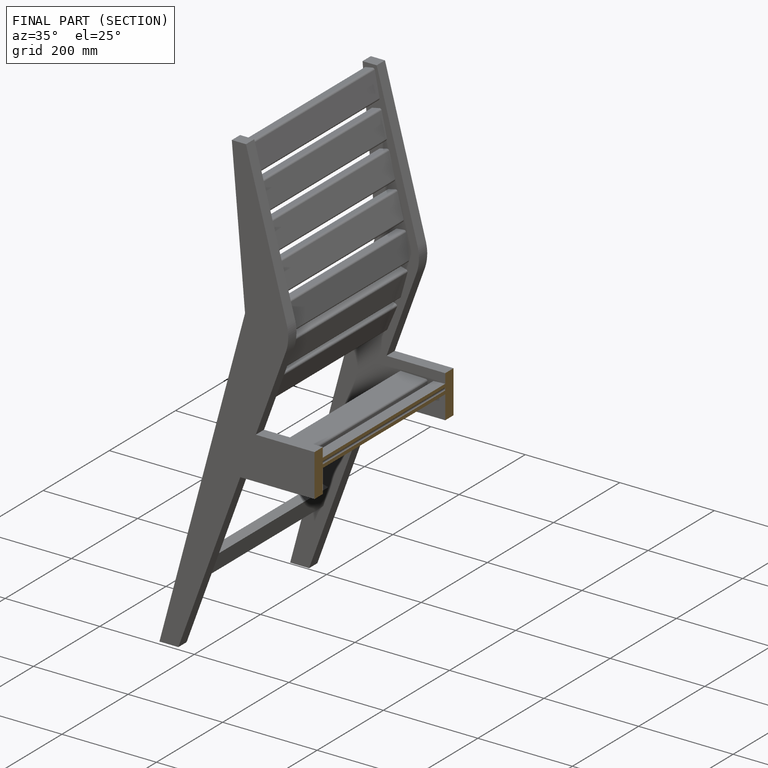
[diagram: finished part — half-section view (interior)]
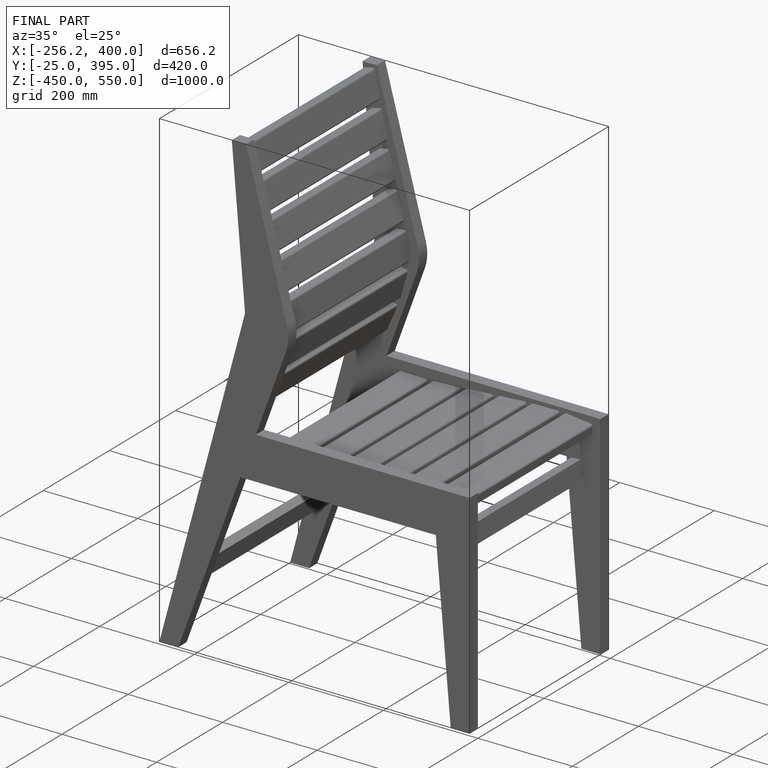
[diagram: finished part — iso view with bounding-box wireframe]
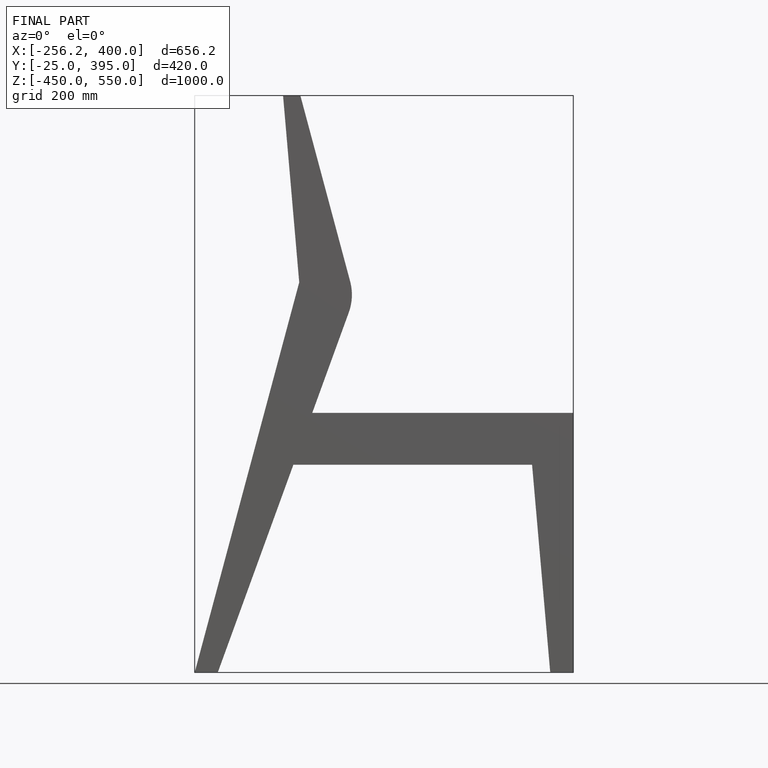
[diagram: finished part — front view with bounding-box wireframe]
